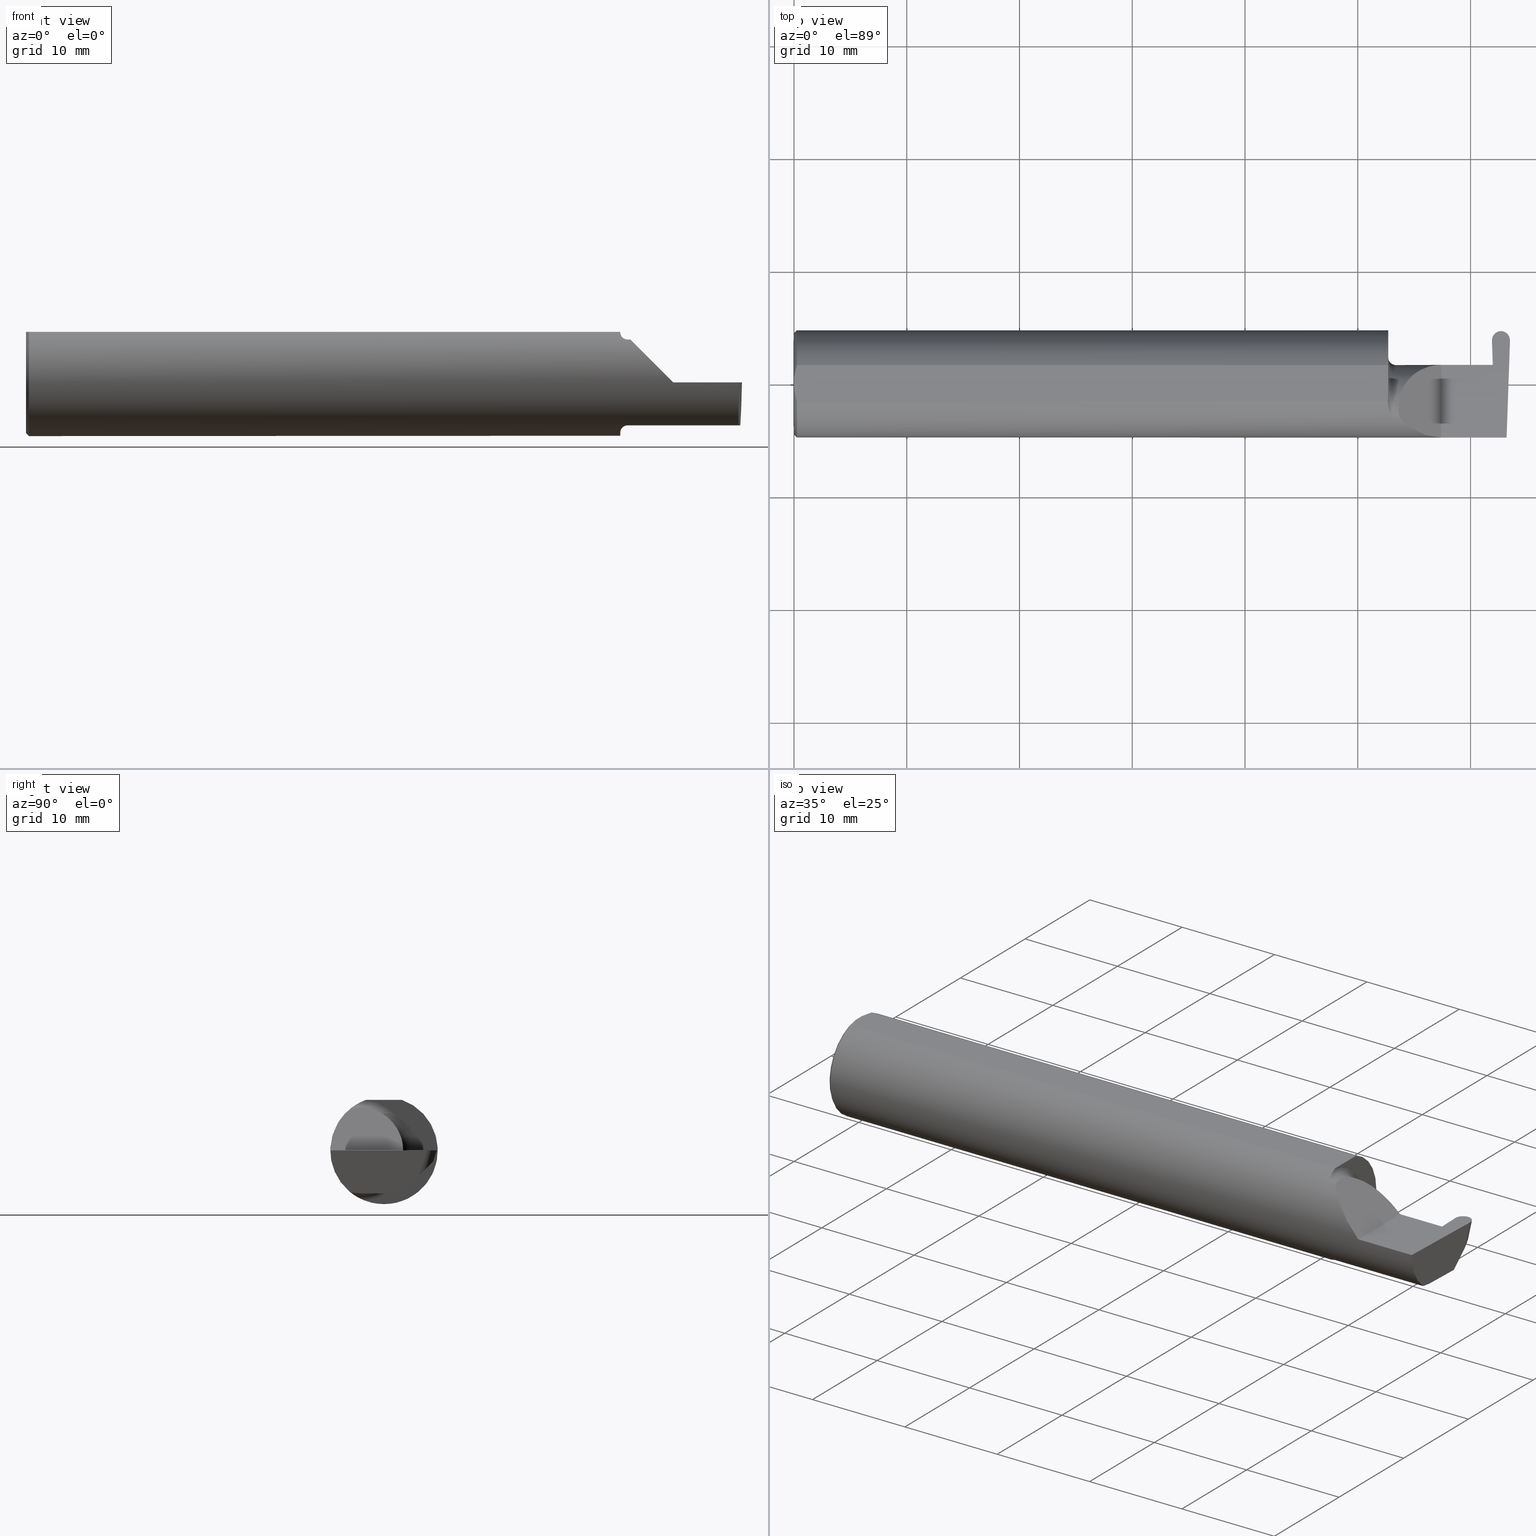
[diagram: canonical four-view strip — front | top / right | iso, engineering-drawing reading convention]
A machine part, canonical four-view strip (front | top / right | iso — engineering-drawing reading convention). The complete STEP part file that produces these views, byte-faithful:
ISO-10303-21;
HEADER;
FILE_DESCRIPTION (( 'STEP AP203' ),
    '1' );
FILE_NAME ('222155-GFR062-6.STEP',
    '2024-06-26T19:10:31',
    ( '' ),
    ( '' ),
    'SwSTEP 2.0',
    'SolidWorks 2024',
    '' );
FILE_SCHEMA (( 'CONFIG_CONTROL_DESIGN' ));
ENDSEC;

DATA;
#1 = LINE ( 'NONE', #5, #705 ) ;
#2 = CARTESIAN_POINT ( 'NONE',  ( 2.113883229301068312, -0.1172600179964003175, 0.1461167706989304760 ) ) ;
#3 = ORIENTED_EDGE ( 'NONE', *, *, #450, .F. ) ;
#4 = PRODUCT_DEFINITION ( 'UNKNOWN', '', #722, #333 ) ;
#5 = CARTESIAN_POINT ( 'NONE',  ( 0.000000000000000000, 0.000000000000000000, -0.1773500000000005072 ) ) ;
#6 =( NAMED_UNIT ( * ) SI_UNIT ( $, .STERADIAN. ) SOLID_ANGLE_UNIT ( ) );
#7 = ORIENTED_EDGE ( 'NONE', *, *, #736, .T. ) ;
#8 = CARTESIAN_POINT ( 'NONE',  ( 2.430708765333227994, 0.06661954135095467244, -0.001744974835127134595 ) ) ;
#9 = ORIENTED_EDGE ( 'NONE', *, *, #450, .T. ) ;
#10 = VECTOR ( 'NONE', #206, 39.37007874015748143 ) ;
#11 = ADVANCED_FACE ( 'NONE', ( #51 ), #547, .F. ) ;
#12 = CARTESIAN_POINT ( 'NONE',  ( 2.468430450000000054, 0.1722870660481372052, -0.03801598549501233881 ) ) ;
#13 = VERTEX_POINT ( 'NONE', #480 ) ;
#14 = DIRECTION ( 'NONE',  ( 0.000000000000000000, 0.000000000000000000, 1.000000000000000000 ) ) ;
#15 = DIRECTION ( 'NONE',  ( -0.7071067811865441310, 0.000000000000000000, -0.7071067811865510144 ) ) ;
#16 = PERSON_AND_ORGANIZATION_ROLE ( 'creator' ) ;
#17 = VERTEX_POINT ( 'NONE', #182 ) ;
#18 = CARTESIAN_POINT ( 'NONE',  ( 2.100000000000000089, -0.08334999999999999354, 0.000000000000000000 ) ) ;
#19 = CARTESIAN_POINT ( 'NONE',  ( 0.000000000000000000, 0.06325108694718235836, 0.1763499999999999235 ) ) ;
#20 = EDGE_CURVE ( 'NONE', #189, #408, #139, .T. ) ;
#21 = MANIFOLD_SOLID_BREP ( 'Radii', #289 ) ;
#22 =( NAMED_UNIT ( * ) PLANE_ANGLE_UNIT ( ) SI_UNIT ( $, .RADIAN. ) );
#23 = ORIENTED_EDGE ( 'NONE', *, *, #715, .F. ) ;
#24 = EDGE_CURVE ( 'NONE', #61, #676, #179, .T. ) ;
#25 = AXIS2_PLACEMENT_3D ( 'NONE', #320, #512, #188 ) ;
#26 = FACE_OUTER_BOUND ( 'NONE', #385, .T. ) ;
#27 = LOCAL_TIME ( 12, 10, 31.00000000000000000, #724 ) ;
#28 = DIRECTION ( 'NONE',  ( 0.000000000000000000, 0.000000000000000000, 1.000000000000000000 ) ) ;
#29 = ORIENTED_EDGE ( 'NONE', *, *, #253, .T. ) ;
#30 = CC_DESIGN_DATE_AND_TIME_ASSIGNMENT ( #275, #567, ( #81 ) ) ;
#31 = PLANE ( 'NONE',  #378 ) ;
#32 = CARTESIAN_POINT ( 'NONE',  ( 2.109999999999998987, -0.08334999999999999354, 0.1500000000000000500 ) ) ;
#33 = EDGE_LOOP ( 'NONE', ( #788, #767, #703, #604, #661, #142 ) ) ;
#34 =( BOUNDED_CURVE ( )  B_SPLINE_CURVE ( 3, ( #489, #39, #175, #680 ),
 .UNSPECIFIED., .F., .T. ) 
 B_SPLINE_CURVE_WITH_KNOTS ( ( 4, 4 ),
 ( 3.159045946109736214, 4.694935687864695950 ),
 .UNSPECIFIED. ) 
 CURVE ( )  GEOMETRIC_REPRESENTATION_ITEM ( )  RATIONAL_B_SPLINE_CURVE ( ( 1.000000000000000000, 0.8128932002257790446, 0.8128932002257790446, 1.000000000000000000 ) ) 
 REPRESENTATION_ITEM ( '' )  );
#35 = CARTESIAN_POINT ( 'NONE',  ( 2.442502567817287584, 0.06409798100083120842, -0.1462050705423010022 ) ) ;
#36 = DIRECTION ( 'NONE',  ( -0.0003154085283454578109, 0.9999999502587288980, 0.000000000000000000 ) ) ;
#37 = APPROVAL_DATE_TIME ( #794, #637 ) ;
#38 = ORIENTED_EDGE ( 'NONE', *, *, #194, .F. ) ;
#39 = CARTESIAN_POINT ( 'NONE',  ( 2.442590694315768474, 0.002105059811798080851, -0.1500000000000000777 ) ) ;
#40 = CIRCLE ( 'NONE', #247, 0.1749999999999999889 ) ;
#41 = AXIS2_PLACEMENT_3D ( 'NONE', #283, #216, #14 ) ;
#42 = FACE_OUTER_BOUND ( 'NONE', #621, .T. ) ;
#43 = APPROVAL_STATUS ( 'not_yet_approved' ) ;
#44 = CARTESIAN_POINT ( 'NONE',  ( 2.496599625675735457, 0.1068818013178887832, -0.1034212502252615240 ) ) ;
#45 = VERTEX_POINT ( 'NONE', #665 ) ;
#46 = CARTESIAN_POINT ( 'NONE',  ( 2.075000000000000178, -0.06851976604679065053, 0.1743704796142198643 ) ) ;
#47 = DIRECTION ( 'NONE',  ( 0.000000000000000000, -0.9510565162951534202, 0.3090169943749482284 ) ) ;
#48 = ORIENTED_EDGE ( 'NONE', *, *, #171, .T. ) ;
#49 = DIRECTION ( 'NONE',  ( 1.000000000000000000, 7.488084056613327882E-15, -0.000000000000000000 ) ) ;
#50 = CARTESIAN_POINT ( 'NONE',  ( 2.100000000000000089, -0.08334999999999999354, 0.000000000000000000 ) ) ;
#51 = FACE_OUTER_BOUND ( 'NONE', #614, .T. ) ;
#52 = EDGE_CURVE ( 'NONE', #337, #13, #750, .T. ) ;
#53 = ORIENTED_EDGE ( 'NONE', *, *, #558, .F. ) ;
#54 = EDGE_CURVE ( 'NONE', #640, #363, #390, .T. ) ;
#55 = CARTESIAN_POINT ( 'NONE',  ( 2.499980768683121024, 0.1519786885938757826, 0.000000000000000000 ) ) ;
#56 = VECTOR ( 'NONE', #566, 39.37007874015747433 ) ;
#57 = CARTESIAN_POINT ( 'NONE',  ( 0.005155213631852355663, 0.04890080824240217866, 0.1763499999999999235 ) ) ;
#58 = AXIS2_PLACEMENT_3D ( 'NONE', #200, #262, #133 ) ;
#59 = ORIENTED_EDGE ( 'NONE', *, *, #54, .T. ) ;
#60 = DIRECTION ( 'NONE',  ( -1.000000000000000000, -0.000000000000000000, -0.000000000000000000 ) ) ;
#61 = VERTEX_POINT ( 'NONE', #746 ) ;
#62 = ADVANCED_FACE ( 'NONE', ( #734 ), #105, .F. ) ;
#63 = DIRECTION ( 'NONE',  ( 0.000000000000000000, 0.000000000000000000, -1.000000000000000000 ) ) ;
#64 = ORIENTED_EDGE ( 'NONE', *, *, #102, .T. ) ;
#65 = FACE_OUTER_BOUND ( 'NONE', #33, .T. ) ;
#66 = AXIS2_PLACEMENT_3D ( 'NONE', #164, #616, #415 ) ;
#67 = FACE_OUTER_BOUND ( 'NONE', #611, .T. ) ;
#68 = AXIS2_PLACEMENT_3D ( 'NONE', #162, #338, #772 ) ;
#69 = ORIENTED_EDGE ( 'NONE', *, *, #282, .F. ) ;
#70 = CARTESIAN_POINT ( 'NONE',  ( 0.009999999999999346217, -0.06325108694718235836, 0.1763499999999999235 ) ) ;
#71 = PERSON_AND_ORGANIZATION_ROLE ( 'design_supplier' ) ;
#72 = ORIENTED_EDGE ( 'NONE', *, *, #168, .T. ) ;
#73 = DIRECTION ( 'NONE',  ( -0.01299916717458447432, 0.7070470357949164564, 0.7070470357949245610 ) ) ;
#74 =( CONVERSION_BASED_UNIT ( 'INCH', #639 ) LENGTH_UNIT ( ) NAMED_UNIT ( #193 ) );
#75 = EDGE_CURVE ( 'NONE', #408, #640, #115, .T. ) ;
#76 = ORIENTED_EDGE ( 'NONE', *, *, #755, .T. ) ;
#77 = LINE ( 'NONE', #801, #409 ) ;
#78 = APPLICATION_PROTOCOL_DEFINITION ( 'international standard', 'config_control_design', 1994, #576 ) ;
#79 = EDGE_LOOP ( 'NONE', ( #416, #120, #303, #161 ) ) ;
#80 = TOROIDAL_SURFACE ( 'NONE', #641, 0.1749999999999999889, 0.02499999999999994241 ) ;
#81 = SECURITY_CLASSIFICATION ( '', '', #271 ) ;
#82 = DIRECTION ( 'NONE',  ( 1.000000000000000000, 0.000000000000000000, 0.000000000000000000 ) ) ;
#83 = CALENDAR_DATE ( 2024, 26, 6 ) ;
#84 = ORIENTED_EDGE ( 'NONE', *, *, #433, .T. ) ;
#85 = DIRECTION ( 'NONE',  ( -1.000000000000000000, -0.000000000000000000, -0.000000000000000000 ) ) ;
#86 = EDGE_CURVE ( 'NONE', #688, #513, #728, .T. ) ;
#87 = CARTESIAN_POINT ( 'NONE',  ( 0.000000000000000000, -0.01880691362239451242, 0.1763499999999999235 ) ) ;
#88 = COORDINATED_UNIVERSAL_TIME_OFFSET ( 8, 0, .BEHIND. ) ;
#89 = VERTEX_POINT ( 'NONE', #484 ) ;
#90 = CARTESIAN_POINT ( 'NONE',  ( 2.075000000000000178, -0.08334999999999997966, -0.1500000000000000500 ) ) ;
#91 = DIRECTION ( 'NONE',  ( 0.000000000000000000, -0.7071067811865516806, 0.7071067811865434649 ) ) ;
#92 = EDGE_CURVE ( 'NONE', #700, #756, #635, .T. ) ;
#93 = PERSON_AND_ORGANIZATION ( #505, #642 ) ;
#94 = ORIENTED_EDGE ( 'NONE', *, *, #452, .F. ) ;
#95 = CARTESIAN_POINT ( 'NONE',  ( 2.076062863587533780, -0.08334999999998818354, 0.1677879614275171183 ) ) ;
#96 = AXIS2_PLACEMENT_3D ( 'NONE', #55, #111, #165 ) ;
#97 = FACE_OUTER_BOUND ( 'NONE', #332, .T. ) ;
#98 = ORIENTED_EDGE ( 'NONE', *, *, #217, .F. ) ;
#99 = CARTESIAN_POINT ( 'NONE',  ( 2.100000000000000089, -0.08334999999999996578, -0.1749999999999999889 ) ) ;
#100 = CARTESIAN_POINT ( 'NONE',  ( 2.439859874782298377, 0.06664999999999998703, 0.000000000000000000 ) ) ;
#101 = ORIENTED_EDGE ( 'NONE', *, *, #86, .F. ) ;
#102 = EDGE_CURVE ( 'NONE', #89, #186, #245, .T. ) ;
#103 = CARTESIAN_POINT ( 'NONE',  ( 2.100000000000000089, -0.08334999999999997966, 0.1749999999999999889 ) ) ;
#104 = DIRECTION ( 'NONE',  ( -1.224646799147353947E-16, 0.000000000000000000, -1.000000000000000000 ) ) ;
#105 = PLANE ( 'NONE',  #238 ) ;
#106 = ORIENTED_EDGE ( 'NONE', *, *, #119, .T. ) ;
#107 = DIRECTION ( 'NONE',  ( -1.000000000000000000, -0.000000000000000000, -0.000000000000000000 ) ) ;
#108 = CIRCLE ( 'NONE', #145, 0.1773500000000005072 ) ;
#109 = CARTESIAN_POINT ( 'NONE',  ( 2.437968007029192030, 0.1506577441815558360, -0.05964530736159395080 ) ) ;
#110 = ORIENTED_EDGE ( 'NONE', *, *, #292, .F. ) ;
#111 = DIRECTION ( 'NONE',  ( -0.9992386149554828290, 0.03489418134010577321, 0.01745240643728358798 ) ) ;
#112 = ADVANCED_FACE ( 'NONE', ( #795 ), #229, .F. ) ;
#113 = CARTESIAN_POINT ( 'NONE',  ( 2.430647848035137226, 0.06655862405286416816, -0.005234924505381401832 ) ) ;
#114 = EDGE_CURVE ( 'NONE', #434, #399, #811, .T. ) ;
#115 = LINE ( 'NONE', #542, #391 ) ;
#116 = ORIENTED_EDGE ( 'NONE', *, *, #673, .F. ) ;
#117 = CARTESIAN_POINT ( 'NONE',  ( 2.079475235432781677, -0.09757364237049398481, -0.1599863467203318512 ) ) ;
#118 = CARTESIAN_POINT ( 'NONE',  ( 2.202189699843948301, -0.1873500000000000443, 0.05781030015605120170 ) ) ;
#119 = EDGE_CURVE ( 'NONE', #697, #45, #299, .T. ) ;
#120 = ORIENTED_EDGE ( 'NONE', *, *, #488, .T. ) ;
#121 = CARTESIAN_POINT ( 'NONE',  ( 2.498892892970808521, 0.1506577441815563079, -0.05964530736159349283 ) ) ;
#122 = CIRCLE ( 'NONE', #548, 0.1873499999999999888 ) ;
#123 = DIRECTION ( 'NONE',  ( 0.000000000000000000, -0.3090169943749481729, -0.9510565162951533091 ) ) ;
#124 = CIRCLE ( 'NONE', #764, 0.02499999999999993894 ) ;
#125 = ORIENTED_EDGE ( 'NONE', *, *, #704, .F. ) ;
#126 = CARTESIAN_POINT ( 'NONE',  ( 2.439859874782298377, 0.06664999999999998703, 0.000000000000000000 ) ) ;
#127 = ORIENTED_EDGE ( 'NONE', *, *, #75, .T. ) ;
#128 = CARTESIAN_POINT ( 'NONE',  ( 2.430739223982273156, 0.06664999999999991764, 0.000000000000000000 ) ) ;
#129 =( BOUNDED_CURVE ( )  B_SPLINE_CURVE ( 3, ( #591, #286, #213, #401 ),
 .UNSPECIFIED., .F., .F. ) 
 B_SPLINE_CURVE_WITH_KNOTS ( ( 4, 4 ),
 ( 0.000000000000000000, 1.570796326794896336 ),
 .UNSPECIFIED. ) 
 CURVE ( )  GEOMETRIC_REPRESENTATION_ITEM ( )  RATIONAL_B_SPLINE_CURVE ( ( 1.000000000000000000, 0.8047378541243650485, 0.8047378541243650485, 1.000000000000000000 ) ) 
 REPRESENTATION_ITEM ( '' )  );
#130 = ORIENTED_EDGE ( 'NONE', *, *, #570, .T. ) ;
#131 = CARTESIAN_POINT ( 'NONE',  ( 2.075000000000000178, -0.08334999999999999354, 0.000000000000000000 ) ) ;
#132 = VECTOR ( 'NONE', #73, 39.37007874015748143 ) ;
#133 = DIRECTION ( 'NONE',  ( 1.000000000000000000, 0.000000000000000000, 0.000000000000000000 ) ) ;
#134 = ORIENTED_EDGE ( 'NONE', *, *, #340, .F. ) ;
#135 = ADVANCED_FACE ( 'NONE', ( #242 ), #492, .F. ) ;
#136 = CARTESIAN_POINT ( 'NONE',  ( 2.268430449999999876, -0.1172600179964006090, -0.1461167706989303927 ) ) ;
#137 = ADVANCED_FACE ( 'NONE', ( #446 ), #634, .T. ) ;
#138 = ORIENTED_EDGE ( 'NONE', *, *, #568, .F. ) ;
#139 = B_SPLINE_CURVE_WITH_KNOTS ( 'NONE', 3,
 ( #620, #173, #610, #420 ),
 .UNSPECIFIED., .F., .F.,
 ( 4, 4 ),
 ( 0.009771445421851449736, 0.01092787937989102981 ),
 .UNSPECIFIED. ) ;
#140 = CARTESIAN_POINT ( 'NONE',  ( 2.468721519699850209, 0.1846500000000000363, 0.000000000000000000 ) ) ;
#141 = CARTESIAN_POINT ( 'NONE',  ( 2.488026713523223243, -0.1172600179964006090, -0.1461167706989303927 ) ) ;
#142 = ORIENTED_EDGE ( 'NONE', *, *, #673, .T. ) ;
#143 = CARTESIAN_POINT ( 'NONE',  ( -0.001039370078740541395, 0.06030305154315079852, -0.1500000000000000500 ) ) ;
#144 = ORIENTED_EDGE ( 'NONE', *, *, #806, .F. ) ;
#145 = AXIS2_PLACEMENT_3D ( 'NONE', #380, #814, #316 ) ;
#146 = ADVANCED_FACE ( 'NONE', ( #760 ), #623, .T. ) ;
#147 = CARTESIAN_POINT ( 'NONE',  ( 2.095724556588812515, -0.1172600179964060629, 0.1461167706989260351 ) ) ;
#148 = DIRECTION ( 'NONE',  ( 0.000000000000000000, 0.000000000000000000, 1.000000000000000000 ) ) ;
#149 = PERSON_AND_ORGANIZATION ( #505, #642 ) ;
#150 = ORIENTED_EDGE ( 'NONE', *, *, #629, .F. ) ;
#151 = CARTESIAN_POINT ( 'NONE',  ( 2.074999999999999734, -0.07360907839729495528, 0.1723706084642000480 ) ) ;
#152 = DIRECTION ( 'NONE',  ( 1.000000000000000000, 0.000000000000000000, 0.000000000000000000 ) ) ;
#153 = ORIENTED_EDGE ( 'NONE', *, *, #488, .F. ) ;
#154 = DIRECTION ( 'NONE',  ( -0.03489949670249345437, 0.9993908270190959842, 0.000000000000000000 ) ) ;
#155 = DIRECTION ( 'NONE',  ( 1.000000000000000000, 0.000000000000000000, -0.000000000000000000 ) ) ;
#156 = ORIENTED_EDGE ( 'NONE', *, *, #736, .F. ) ;
#157 = VECTOR ( 'NONE', #414, 39.37007874015748143 ) ;
#158 = CARTESIAN_POINT ( 'NONE',  ( 2.084249444250374061, -0.1073163636891284328, 0.1536158790136665231 ) ) ;
#159 = CC_DESIGN_APPROVAL ( #348, ( #4 ) ) ;
#160 = CARTESIAN_POINT ( 'NONE',  ( 0.000000000000000000, 0.000000000000000000, -0.1773500000000005072 ) ) ;
#161 = ORIENTED_EDGE ( 'NONE', *, *, #714, .T. ) ;
#162 = CARTESIAN_POINT ( 'NONE',  ( 2.876828993045917215, 0.1873499999999998500, 0.1763499999999999235 ) ) ;
#163 = CARTESIAN_POINT ( 'NONE',  ( 2.489143054109411057, -0.08335000000000014619, -0.1500000000000000500 ) ) ;
#164 = CARTESIAN_POINT ( 'NONE',  ( 0.000000000000000000, 0.000000000000000000, 0.000000000000000000 ) ) ;
#165 = DIRECTION ( 'NONE',  ( -0.03489949670249307273, -0.9993908270190959842, 0.000000000000000000 ) ) ;
#166 = DIRECTION ( 'NONE',  ( 1.000000000000000000, 0.000000000000000000, 0.000000000000000000 ) ) ;
#167 = VERTEX_POINT ( 'NONE', #502 ) ;
#168 = EDGE_CURVE ( 'NONE', #325, #408, #108, .T. ) ;
#169 = CARTESIAN_POINT ( 'NONE',  ( 2.075000000000000178, -0.07359296612170564134, -0.1723769398647691520 ) ) ;
#170 = VECTOR ( 'NONE', #190, 39.37007874015748143 ) ;
#171 = EDGE_CURVE ( 'NONE', #624, #13, #260, .T. ) ;
#172 = CARTESIAN_POINT ( 'NONE',  ( 3.749399456654646757E-32, -0.1873499999999999610, 3.061616997868383634E-16 ) ) ;
#173 = CARTESIAN_POINT ( 'NONE',  ( 0.005151108632379595466, -0.04888864921576189376, 0.1763499999999999235 ) ) ;
#174 = ORIENTED_EDGE ( 'NONE', *, *, #24, .T. ) ;
#175 = CARTESIAN_POINT ( 'NONE',  ( 2.441498648347320888, 0.06357628547474594716, -0.09063792740366180545 ) ) ;
#176 = CC_DESIGN_PERSON_AND_ORGANIZATION_ASSIGNMENT ( #779, #71, ( #722 ) ) ;
#177 = CARTESIAN_POINT ( 'NONE',  ( 2.442617676478078259, -0.08344164721461182210, -0.1500000000000000500 ) ) ;
#178 = B_SPLINE_CURVE_WITH_KNOTS ( 'NONE', 3,
 ( #503, #619, #169, #431 ),
 .UNSPECIFIED., .F., .F.,
 ( 4, 4 ),
 ( 0.001278539404338874426, 0.001694873732696222223 ),
 .UNSPECIFIED. ) ;
#179 = LINE ( 'NONE', #669, #261 ) ;
#180 = ORIENTED_EDGE ( 'NONE', *, *, #813, .T. ) ;
#181 = FACE_OUTER_BOUND ( 'NONE', #504, .T. ) ;
#182 = CARTESIAN_POINT ( 'NONE',  ( 2.442617647571764028, -0.08334999999999999354, -0.1500000000000000500 ) ) ;
#183 = ORIENTED_EDGE ( 'NONE', *, *, #427, .T. ) ;
#184 = LINE ( 'NONE', #386, #170 ) ;
#185 = VECTOR ( 'NONE', #458, 39.37007874015748143 ) ;
#186 = VERTEX_POINT ( 'NONE', #684 ) ;
#187 = ADVANCED_BREP_SHAPE_REPRESENTATION ( '222155-GFR062-6', ( #21, #58 ), #344 ) ;
#188 = DIRECTION ( 'NONE',  ( 0.000000000000000000, 0.9510565162951533091, -0.3090169943749480619 ) ) ;
#189 = VERTEX_POINT ( 'NONE', #70 ) ;
#190 = DIRECTION ( 'NONE',  ( -0.03701744261649762141, 0.7066221440565398915, 0.7066221440565479961 ) ) ;
#191 = CARTESIAN_POINT ( 'NONE',  ( 2.076062863587533780, -0.08334999999998818354, 0.1677879614275171183 ) ) ;
#192 = ORIENTED_EDGE ( 'NONE', *, *, #714, .F. ) ;
#193 = DIMENSIONAL_EXPONENTS ( 1.000000000000000000, 0.000000000000000000, 0.000000000000000000, 0.000000000000000000, 0.000000000000000000, 0.000000000000000000, 0.000000000000000000 ) ;
#194 = EDGE_CURVE ( 'NONE', #640, #325, #368, .T. ) ;
#195 = ADVANCED_FACE ( 'NONE', ( #65 ), #80, .F. ) ;
#196 = DIRECTION ( 'NONE',  ( 0.7071067811865426878, 0.000000000000000000, -0.7071067811865523467 ) ) ;
#197 = AXIS2_PLACEMENT_3D ( 'NONE', #571, #559, #63 ) ;
#198 = ORIENTED_EDGE ( 'NONE', *, *, #20, .T. ) ;
#199 = CC_DESIGN_PERSON_AND_ORGANIZATION_ASSIGNMENT ( #520, #648, ( #81 ) ) ;
#200 = CARTESIAN_POINT ( 'NONE',  ( 0.000000000000000000, 0.000000000000000000, 0.000000000000000000 ) ) ;
#201 = VERTEX_POINT ( 'NONE', #383 ) ;
#202 = CARTESIAN_POINT ( 'NONE',  ( 2.260000000000000231, -0.2500000000000000555, 2.939152317953647352E-17 ) ) ;
#203 = PERSON_AND_ORGANIZATION_ROLE ( 'creator' ) ;
#204 = ORIENTED_EDGE ( 'NONE', *, *, #281, .T. ) ;
#205 = LINE ( 'NONE', #232, #562 ) ;
#206 = DIRECTION ( 'NONE',  ( -1.000000000000000000, -0.000000000000000000, -0.000000000000000000 ) ) ;
#207 = APPROVAL_DATE_TIME ( #515, #348 ) ;
#208 = ORIENTED_EDGE ( 'NONE', *, *, #782, .F. ) ;
#209 = VECTOR ( 'NONE', #721, 39.37007874015748143 ) ;
#210 = AXIS2_PLACEMENT_3D ( 'NONE', #650, #466, #222 ) ;
#211 = PLANE ( 'NONE',  #485 ) ;
#212 = ORIENTED_EDGE ( 'NONE', *, *, #622, .F. ) ;
#213 = CARTESIAN_POINT ( 'NONE',  ( 2.172132034355963359, 0.06665000000000001479, 0.08786796564403576149 ) ) ;
#214 = CARTESIAN_POINT ( 'NONE',  ( 2.109999999999998543, -0.09477667630339406402, 0.1500000000000000222 ) ) ;
#215 = EDGE_LOOP ( 'NONE', ( #666, #308, #771, #816 ) ) ;
#216 = DIRECTION ( 'NONE',  ( -1.000000000000000000, -0.000000000000000000, -0.000000000000000000 ) ) ;
#217 = EDGE_CURVE ( 'NONE', #569, #167, #609, .T. ) ;
#218 = EDGE_CURVE ( 'NONE', #89, #61, #563, .T. ) ;
#219 = PLANE ( 'NONE',  #720 ) ;
#220 = ORIENTED_EDGE ( 'NONE', *, *, #745, .T. ) ;
#221 = VECTOR ( 'NONE', #436, 39.37007874015747433 ) ;
#222 = DIRECTION ( 'NONE',  ( 0.000000000000000000, 0.000000000000000000, -1.000000000000000000 ) ) ;
#223 = LOCAL_TIME ( 12, 10, 31.00000000000000000, #398 ) ;
#224 = DIRECTION ( 'NONE',  ( -1.000000000000000000, 0.000000000000000000, 1.224646799147353947E-16 ) ) ;
#225 = CARTESIAN_POINT ( 'NONE',  ( 2.468430450000000054, 0.1813675557112593428, -0.01010232474915218753 ) ) ;
#226 = CARTESIAN_POINT ( 'NONE',  ( 2.100000000000000089, -0.08334999999999996578, -0.1500000000000000777 ) ) ;
#227 = CARTESIAN_POINT ( 'NONE',  ( 2.439475726232483321, 0.1218770478189729611, -0.08842600372417716570 ) ) ;
#228 = SHAPE_DEFINITION_REPRESENTATION ( #256, #187 ) ;
#229 = PLANE ( 'NONE',  #277 ) ;
#230 = EDGE_CURVE ( 'NONE', #272, #697, #312, .T. ) ;
#231 = VERTEX_POINT ( 'NONE', #439 ) ;
#232 = CARTESIAN_POINT ( 'NONE',  ( 2.436880131316879083, 0.1519786885938757270, 0.000000000000000000 ) ) ;
#233 = CARTESIAN_POINT ( 'NONE',  ( 2.100000000000000089, -0.1172600179964006090, 0.1461167706989303927 ) ) ;
#234 =( BOUNDED_CURVE ( )  B_SPLINE_CURVE ( 3, ( #606, #352, #121, #442 ),
 .UNSPECIFIED., .F., .F. ) 
 B_SPLINE_CURVE_WITH_KNOTS ( ( 4, 4 ),
 ( 3.153164711223715777, 4.726229945297541590 ),
 .UNSPECIFIED. ) 
 CURVE ( )  GEOMETRIC_REPRESENTATION_ITEM ( )  RATIONAL_B_SPLINE_CURVE ( ( 1.000000000000000000, 0.8042027643195487352, 0.8042027643195487352, 1.000000000000000000 ) ) 
 REPRESENTATION_ITEM ( '' )  );
#235 = CARTESIAN_POINT ( 'NONE',  ( 2.468430450000000054, 0.1722870660481372052, -0.03801598549501233881 ) ) ;
#236 = APPROVAL ( #394, 'UNSPECIFIED' ) ;
#237 = CARTESIAN_POINT ( 'NONE',  ( 2.086340974786207170, -0.1102890168945985933, -0.1514792188789464422 ) ) ;
#238 = AXIS2_PLACEMENT_3D ( 'NONE', #307, #354, #675 ) ;
#239 = VECTOR ( 'NONE', #674, 39.37007874015748143 ) ;
#240 = DIRECTION ( 'NONE',  ( 0.000000000000000000, 0.9510565162951534202, -0.3090169943749482839 ) ) ;
#241 = CC_DESIGN_APPROVAL ( #637, ( #81 ) ) ;
#242 = FACE_OUTER_BOUND ( 'NONE', #79, .T. ) ;
#243 = VERTEX_POINT ( 'NONE', #765 ) ;
#244 = DIRECTION ( 'NONE',  ( 0.000000000000000000, 0.000000000000000000, 1.000000000000000000 ) ) ;
#245 = LINE ( 'NONE', #44, #535 ) ;
#246 = ORIENTED_EDGE ( 'NONE', *, *, #544, .T. ) ;
#247 = AXIS2_PLACEMENT_3D ( 'NONE', #749, #754, #687 ) ;
#248 = VECTOR ( 'NONE', #545, 39.37007874015747433 ) ;
#249 = DIRECTION ( 'NONE',  ( 7.486943585142156164E-15, -0.9998476951563912696, 0.01745240643728358451 ) ) ;
#250 = ORIENTED_EDGE ( 'NONE', *, *, #114, .T. ) ;
#251 = DIRECTION ( 'NONE',  ( 0.000000000000000000, -0.01745240643728358451, -0.9998476951563912696 ) ) ;
#252 = DIRECTION ( 'NONE',  ( 1.000000000000000000, 0.000000000000000000, 0.000000000000000000 ) ) ;
#253 = EDGE_CURVE ( 'NONE', #61, #347, #519, .T. ) ;
#254 = ORIENTED_EDGE ( 'NONE', *, *, #114, .F. ) ;
#255 = EDGE_CURVE ( 'NONE', #805, #337, #40, .T. ) ;
#256 = PRODUCT_DEFINITION_SHAPE ( 'NONE', 'NONE',  #4 ) ;
#257 = DIRECTION ( 'NONE',  ( -1.000000000000000000, -0.000000000000000000, -0.000000000000000000 ) ) ;
#258 = CALENDAR_DATE ( 2024, 26, 6 ) ;
#259 = ORIENTED_EDGE ( 'NONE', *, *, #509, .F. ) ;
#260 = LINE ( 'NONE', #810, #601 ) ;
#261 = VECTOR ( 'NONE', #744, 39.37007874015747433 ) ;
#262 = DIRECTION ( 'NONE',  ( 0.000000000000000000, 0.000000000000000000, 1.000000000000000000 ) ) ;
#263 = AXIS2_PLACEMENT_3D ( 'NONE', #743, #597, #600 ) ;
#264 = ORIENTED_EDGE ( 'NONE', *, *, #230, .T. ) ;
#265 = LINE ( 'NONE', #455, #10 ) ;
#266 = COORDINATED_UNIVERSAL_TIME_OFFSET ( 8, 0, .BEHIND. ) ;
#267 = EDGE_LOOP ( 'NONE', ( #101, #658, #250, #626, #110 ) ) ;
#268 = CARTESIAN_POINT ( 'NONE',  ( 2.086319809340846820, -0.1102629523538395662, 0.1514982751257170079 ) ) ;
#269 = DIRECTION ( 'NONE',  ( 0.000000000000000000, 0.000000000000000000, -1.000000000000000000 ) ) ;
#270 = EDGE_CURVE ( 'NONE', #325, #685, #1, .T. ) ;
#271 = SECURITY_CLASSIFICATION_LEVEL ( 'unclassified' ) ;
#272 = VERTEX_POINT ( 'NONE', #506 ) ;
#273 = CARTESIAN_POINT ( 'NONE',  ( 0.000000000000000000, -0.06325108694718235836, 0.1763499999999999235 ) ) ;
#274 = LINE ( 'NONE', #143, #342 ) ;
#275 = DATE_AND_TIME ( #336, #725 ) ;
#276 = EDGE_LOOP ( 'NONE', ( #204, #246, #457, #64, #382, #264 ) ) ;
#277 = AXIS2_PLACEMENT_3D ( 'NONE', #359, #47, #123 ) ;
#278 = CARTESIAN_POINT ( 'NONE',  ( 2.436880131316879083, 0.1519786885938757270, 0.000000000000000000 ) ) ;
#279 = CARTESIAN_POINT ( 'NONE',  ( 2.075000000000000178, 0.06665000000000002867, 5.204748896376251932E-17 ) ) ;
#280 = ORIENTED_EDGE ( 'NONE', *, *, #282, .T. ) ;
#281 = EDGE_CURVE ( 'NONE', #697, #231, #184, .T. ) ;
#282 = EDGE_CURVE ( 'NONE', #201, #481, #691, .T. ) ;
#283 = CARTESIAN_POINT ( 'NONE',  ( 0.000000000000000000, 0.000000000000000000, 0.000000000000000000 ) ) ;
#284 = LINE ( 'NONE', #518, #473 ) ;
#285 = ORIENTED_EDGE ( 'NONE', *, *, #54, .F. ) ;
#286 = CARTESIAN_POINT ( 'NONE',  ( 2.109999999999998543, 0.004517965644035750600, 0.1500000000000000500 ) ) ;
#287 = LINE ( 'NONE', #172, #239 ) ;
#288 = DIRECTION ( 'NONE',  ( 1.000000000000000000, 0.000000000000000000, 0.000000000000000000 ) ) ;
#289 = CLOSED_SHELL ( 'NONE', ( #137, #595, #781, #195, #403, #135, #690, #402, #490, #667, #11, #631, #731, #315, #533, #323, #112, #343, #689, #723, #62, #146, #543 ) ) ;
#290 = CARTESIAN_POINT ( 'NONE',  ( 2.097868998470238555, -0.1172600179964006506, -0.1461167706989303927 ) ) ;
#291 = APPROVAL_PERSON_ORGANIZATION ( #149, #348, #699 ) ;
#292 = EDGE_CURVE ( 'NONE', #513, #231, #556, .T. ) ;
#293 = CYLINDRICAL_SURFACE ( 'NONE', #460, 0.03149999999999998634 ) ;
#294 = APPROVAL_ROLE ( '' ) ;
#295 = ORIENTED_EDGE ( 'NONE', *, *, #230, .F. ) ;
#296 = EDGE_LOOP ( 'NONE', ( #590, #322, #682, #747 ) ) ;
#297 = CARTESIAN_POINT ( 'NONE',  ( 2.100000000000000089, -0.08334999999999997966, 0.000000000000000000 ) ) ;
#298 = CARTESIAN_POINT ( 'NONE',  ( 2.487121452143546296, -0.1873500000000000165, -0.05781030015605123640 ) ) ;
#299 = LINE ( 'NONE', #740, #523 ) ;
#300 = DIRECTION ( 'NONE',  ( 0.000000000000000000, 0.000000000000000000, -1.000000000000000000 ) ) ;
#301 = DIRECTION ( 'NONE',  ( 0.000000000000000000, 0.000000000000000000, -1.000000000000000000 ) ) ;
#302 = DIRECTION ( 'NONE',  ( -0.01806954526206907760, 0.01744955702544846027, 0.9996844524616944616 ) ) ;
#303 = ORIENTED_EDGE ( 'NONE', *, *, #217, .T. ) ;
#304 = CARTESIAN_POINT ( 'NONE',  ( 0.009999999999999346217, 0.000000000000000000, 0.000000000000000000 ) ) ;
#305 = CONICAL_SURFACE ( 'NONE', #802, 0.1773500000000005072, 0.7853981633974551624 ) ;
#306 = AXIS2_PLACEMENT_3D ( 'NONE', #426, #107, #796 ) ;
#307 = CARTESIAN_POINT ( 'NONE',  ( 2.442864017735575821, -2.379232792529848872, -0.1235596198100888943 ) ) ;
#308 = ORIENTED_EDGE ( 'NONE', *, *, #92, .F. ) ;
#309 = EDGE_CURVE ( 'NONE', #500, #17, #265, .T. ) ;
#310 = DIRECTION ( 'NONE',  ( -1.000000000000000000, -0.000000000000000000, -0.000000000000000000 ) ) ;
#311 = ORIENTED_EDGE ( 'NONE', *, *, #807, .F. ) ;
#312 = LINE ( 'NONE', #375, #132 ) ;
#313 = ORIENTED_EDGE ( 'NONE', *, *, #452, .T. ) ;
#314 = VECTOR ( 'NONE', #651, 39.37007874015748143 ) ;
#315 = ADVANCED_FACE ( 'NONE', ( #97 ), #577, .T. ) ;
#316 = DIRECTION ( 'NONE',  ( 0.000000000000000000, 0.000000000000000000, -1.000000000000000000 ) ) ;
#317 = EDGE_CURVE ( 'NONE', #13, #363, #707, .T. ) ;
#318 = DIRECTION ( 'NONE',  ( -0.02739170151059983765, -0.3089010440752013587, -0.9506996579664918068 ) ) ;
#319 = ORIENTED_EDGE ( 'NONE', *, *, #194, .T. ) ;
#320 = CARTESIAN_POINT ( 'NONE',  ( 2.466868444985754305, 0.1337942696928608455, -0.05458170264606326816 ) ) ;
#321 = APPROVAL_DATE_TIME ( #331, #236 ) ;
#322 = ORIENTED_EDGE ( 'NONE', *, *, #171, .F. ) ;
#323 = ADVANCED_FACE ( 'NONE', ( #326 ), #219, .F. ) ;
#324 = CARTESIAN_POINT ( 'NONE',  ( 2.500625205974851273, 0.1704329581048291409, -1.247844596711687595E-17 ) ) ;
#325 = VERTEX_POINT ( 'NONE', #160 ) ;
#326 = FACE_OUTER_BOUND ( 'NONE', #730, .T. ) ;
#327 = AXIS2_PLACEMENT_3D ( 'NONE', #50, #541, #353 ) ;
#328 = EDGE_LOOP ( 'NONE', ( #130, #48, #679, #285, #341, #465 ) ) ;
#329 = CARTESIAN_POINT ( 'NONE',  ( 2.075000000000000178, -0.08334999999999999354, 0.000000000000000000 ) ) ;
#330 = FACE_OUTER_BOUND ( 'NONE', #276, .T. ) ;
#331 = DATE_AND_TIME ( #83, #223 ) ;
#332 = EDGE_LOOP ( 'NONE', ( #809, #440, #395, #280, #259 ) ) ;
#333 = DESIGN_CONTEXT ( 'detailed design', #753, 'design' ) ;
#334 = FACE_OUTER_BOUND ( 'NONE', #726, .T. ) ;
#335 = DIRECTION ( 'NONE',  ( -0.000000000000000000, 1.000000000000000000, -0.000000000000000000 ) ) ;
#336 = CALENDAR_DATE ( 2024, 26, 6 ) ;
#337 = VERTEX_POINT ( 'NONE', #530 ) ;
#338 = DIRECTION ( 'NONE',  ( 0.000000000000000000, 0.000000000000000000, 1.000000000000000000 ) ) ;
#339 = DIRECTION ( 'NONE',  ( 0.000000000000000000, -0.7071067811865433539, -0.7071067811865515695 ) ) ;
#340 = EDGE_CURVE ( 'NONE', #521, #756, #459, .T. ) ;
#341 = ORIENTED_EDGE ( 'NONE', *, *, #75, .F. ) ;
#342 = VECTOR ( 'NONE', #655, 39.37007874015748143 ) ;
#343 = ADVANCED_FACE ( 'NONE', ( #330 ), #514, .F. ) ;
#344 =( GEOMETRIC_REPRESENTATION_CONTEXT ( 3 ) GLOBAL_UNCERTAINTY_ASSIGNED_CONTEXT ( ( #400 ) ) GLOBAL_UNIT_ASSIGNED_CONTEXT ( ( #74, #22, #6 ) ) REPRESENTATION_CONTEXT ( 'NONE', 'WORKASPACE' ) );
#345 = CARTESIAN_POINT ( 'NONE',  ( 2.100000000000000089, -0.1172600179964006090, 0.1461167706989303927 ) ) ;
#346 = CARTESIAN_POINT ( 'NONE',  ( 2.733184360054361939, -0.08335000000000014619, -0.1500000000000000500 ) ) ;
#347 = VERTEX_POINT ( 'NONE', #397 ) ;
#348 = APPROVAL ( #453, 'UNSPECIFIED' ) ;
#349 = CARTESIAN_POINT ( 'NONE',  ( 2.100000000000000089, -0.08334999999999997966, 0.1500000000000000777 ) ) ;
#350 = CARTESIAN_POINT ( 'NONE',  ( 2.500000000000000000, -0.2500000000000000555, 0.000000000000000000 ) ) ;
#351 = ORIENTED_EDGE ( 'NONE', *, *, #551, .F. ) ;
#352 = CARTESIAN_POINT ( 'NONE',  ( 2.486891473655445939, 0.1715521506114309758, -0.03875090093171855432 ) ) ;
#353 = DIRECTION ( 'NONE',  ( 0.000000000000000000, 0.000000000000000000, 1.000000000000000000 ) ) ;
#354 = DIRECTION ( 'NONE',  ( 0.9998367324388628408, 0.0003153570480505333835, 0.01806679318280454000 ) ) ;
#355 = ORIENTED_EDGE ( 'NONE', *, *, #317, .F. ) ;
#356 = VECTOR ( 'NONE', #36, 39.37007874015748143 ) ;
#357 = EDGE_CURVE ( 'NONE', #539, #167, #589, .T. ) ;
#358 = LINE ( 'NONE', #729, #157 ) ;
#359 = CARTESIAN_POINT ( 'NONE',  ( -0.001039370078740541395, 0.1846500000000000363, 0.000000000000000000 ) ) ;
#360 = LINE ( 'NONE', #758, #695 ) ;
#361 = CARTESIAN_POINT ( 'NONE',  ( 2.109999999999998987, -0.08334999999999999354, 0.1500000000000000500 ) ) ;
#362 = CARTESIAN_POINT ( 'NONE',  ( 0.009999999999999346217, 0.06325108694718235836, 0.1763499999999999235 ) ) ;
#363 = VERTEX_POINT ( 'NONE', #768 ) ;
#364 = CARTESIAN_POINT ( 'NONE',  ( 2.077380638915945710, -0.09060738690120606620, -0.1640321561807271122 ) ) ;
#365 = CARTESIAN_POINT ( 'NONE',  ( 2.150065971957464850, -0.1623470442677540371, 0.1099340280425340488 ) ) ;
#366 = EDGE_CURVE ( 'NONE', #756, #549, #718, .T. ) ;
#367 = DIRECTION ( 'NONE',  ( -0.03489949670249346131, 0.9993908270190959842, -0.000000000000000000 ) ) ;
#368 = CIRCLE ( 'NONE', #197, 0.1773500000000005072 ) ;
#369 = VECTOR ( 'NONE', #318, 39.37007874015748854 ) ;
#370 = CARTESIAN_POINT ( 'NONE',  ( 0.000000000000000000, 0.01880691362239451242, 0.1763499999999999235 ) ) ;
#371 = ORIENTED_EDGE ( 'NONE', *, *, #24, .F. ) ;
#372 = DIRECTION ( 'NONE',  ( 0.000000000000000000, 0.000000000000000000, 1.000000000000000000 ) ) ;
#373 = ORIENTED_EDGE ( 'NONE', *, *, #769, .T. ) ;
#374 = EDGE_CURVE ( 'NONE', #688, #347, #407, .T. ) ;
#375 = CARTESIAN_POINT ( 'NONE',  ( 2.440100631637626805, 0.1947434164498489384, -0.01555963509330035924 ) ) ;
#376 = ORIENTED_EDGE ( 'NONE', *, *, #52, .F. ) ;
#377 = AXIS2_PLACEMENT_3D ( 'NONE', #131, #257, #372 ) ;
#378 = AXIS2_PLACEMENT_3D ( 'NONE', #278, #527, #154 ) ;
#379 = CC_DESIGN_DATE_AND_TIME_ASSIGNMENT ( #761, #448, ( #4 ) ) ;
#380 = CARTESIAN_POINT ( 'NONE',  ( 0.000000000000000000, 0.000000000000000000, 0.000000000000000000 ) ) ;
#381 = PERSON_AND_ORGANIZATION_ROLE ( 'design_owner' ) ;
#382 = ORIENTED_EDGE ( 'NONE', *, *, #427, .F. ) ;
#383 = CARTESIAN_POINT ( 'NONE',  ( 2.488026713523223243, -0.1172600179964006090, -0.1461167706989303927 ) ) ;
#384 = CARTESIAN_POINT ( 'NONE',  ( 2.488370294460939824, -0.1061291577212409576, -0.1486999626928446339 ) ) ;
#385 = EDGE_LOOP ( 'NONE', ( #583, #496, #449, #106, #220 ) ) ;
#386 = CARTESIAN_POINT ( 'NONE',  ( 2.433493489500018647, 0.2360713477856620501, 0.02576829624251322087 ) ) ;
#387 = CARTESIAN_POINT ( 'NONE',  ( 2.489143054109411057, -0.08335000000000014619, -0.1500000000000000500 ) ) ;
#388 = ORIENTED_EDGE ( 'NONE', *, *, #551, .T. ) ;
#389 = B_SPLINE_CURVE_WITH_KNOTS ( 'NONE', 3,
 ( #653, #786, #646, #158, #268, #776, #147, #345 ),
 .UNSPECIFIED., .F., .F.,
 ( 4, 2, 2, 4 ),
 ( 0.0004561457252213468741, 0.001084815134961802192, 0.001399149839832029363, 0.001713484544702256317 ),
 .UNSPECIFIED. ) ;
#390 = B_SPLINE_CURVE_WITH_KNOTS ( 'NONE', 3,
 ( #370, #425, #57, #362 ),
 .UNSPECIFIED., .F., .F.,
 ( 4, 4 ),
 ( 0.01188664626022267051, 0.01304646959483758001 ),
 .UNSPECIFIED. ) ;
#391 = VECTOR ( 'NONE', #808, 39.37007874015748143 ) ;
#392 = CARTESIAN_POINT ( 'NONE',  ( 0.000000000000000000, 0.000000000000000000, 0.000000000000000000 ) ) ;
#393 = AXIS2_PLACEMENT_3D ( 'NONE', #329, #532, #579 ) ;
#394 = APPROVAL_STATUS ( 'not_yet_approved' ) ;
#395 = ORIENTED_EDGE ( 'NONE', *, *, #813, .F. ) ;
#396 = LINE ( 'NONE', #596, #498 ) ;
#397 = CARTESIAN_POINT ( 'NONE',  ( 2.468721519699850209, 0.1846500000000000363, 0.000000000000000000 ) ) ;
#398 = COORDINATED_UNIVERSAL_TIME_OFFSET ( 8, 0, .BEHIND. ) ;
#399 = VERTEX_POINT ( 'NONE', #12 ) ;
#400 = UNCERTAINTY_MEASURE_WITH_UNIT (LENGTH_MEASURE( 1.000000000000000082E-05 ), #74, 'distance_accuracy_value', 'NONE');
#401 = CARTESIAN_POINT ( 'NONE',  ( 2.260000000000000231, 0.06665000000000002867, 5.204748896376251932E-17 ) ) ;
#402 = ADVANCED_FACE ( 'NONE', ( #710 ), #211, .F. ) ;
#403 = ADVANCED_FACE ( 'NONE', ( #784 ), #305, .T. ) ;
#404 = CARTESIAN_POINT ( 'NONE',  ( 2.468430450000000054, 0.1813675557112593428, -0.01010232474915218753 ) ) ;
#405 = ORIENTED_EDGE ( 'NONE', *, *, #558, .T. ) ;
#406 = DIRECTION ( 'NONE',  ( -0.000000000000000000, 1.000000000000000000, 1.224646799147353207E-16 ) ) ;
#407 = LINE ( 'NONE', #647, #627 ) ;
#408 = VERTEX_POINT ( 'NONE', #87 ) ;
#409 = VECTOR ( 'NONE', #791, 39.37007874015748143 ) ;
#410 = CARTESIAN_POINT ( 'NONE',  ( 0.009999999999999346217, 0.000000000000000000, -0.1873499999999999888 ) ) ;
#411 = CARTESIAN_POINT ( 'NONE',  ( 2.100000000000000089, -0.1172600179964006090, -0.1461167706989303927 ) ) ;
#412 = ORIENTED_EDGE ( 'NONE', *, *, #357, .F. ) ;
#413 = CYLINDRICAL_SURFACE ( 'NONE', #41, 0.1873499999999999888 ) ;
#414 = DIRECTION ( 'NONE',  ( -1.000000000000000000, -0.000000000000000000, -0.000000000000000000 ) ) ;
#415 = DIRECTION ( 'NONE',  ( 0.000000000000000000, 0.000000000000000000, -1.000000000000000000 ) ) ;
#416 = ORIENTED_EDGE ( 'NONE', *, *, #745, .F. ) ;
#417 = EDGE_CURVE ( 'NONE', #700, #539, #284, .T. ) ;
#418 = LINE ( 'NONE', #564, #248 ) ;
#419 = LINE ( 'NONE', #479, #510 ) ;
#420 = CARTESIAN_POINT ( 'NONE',  ( 0.000000000000000000, -0.01880691362239451242, 0.1763499999999999235 ) ) ;
#421 = ORIENTED_EDGE ( 'NONE', *, *, #433, .F. ) ;
#422 = DIRECTION ( 'NONE',  ( 0.000000000000000000, 0.000000000000000000, -1.000000000000000000 ) ) ;
#423 = PRODUCT_RELATED_PRODUCT_CATEGORY ( 'detail', '', ( #628 ) ) ;
#424 = PLANE ( 'NONE',  #617 ) ;
#425 = CARTESIAN_POINT ( 'NONE',  ( 0.001616639753276218755, 0.03405189565400963680, 0.1763499999999999235 ) ) ;
#426 = CARTESIAN_POINT ( 'NONE',  ( 2.100000000000000089, -0.08334999999999997966, 0.000000000000000000 ) ) ;
#427 = EDGE_CURVE ( 'NONE', #272, #186, #274, .T. ) ;
#428 = CARTESIAN_POINT ( 'NONE',  ( 2.488026713523223243, -0.1172600179964006090, -0.1461167706989303927 ) ) ;
#429 = CARTESIAN_POINT ( 'NONE',  ( 2.075000000000000178, 0.000000000000000000, 0.000000000000000000 ) ) ;
#430 = ORIENTED_EDGE ( 'NONE', *, *, #509, .T. ) ;
#431 = CARTESIAN_POINT ( 'NONE',  ( 2.075000000000000178, -0.06851976604679065053, -0.1743704796142198643 ) ) ;
#432 = CARTESIAN_POINT ( 'NONE',  ( 2.260000000000000231, -0.1873499999999999888, 2.939152317953647352E-17 ) ) ;
#433 = EDGE_CURVE ( 'NONE', #189, #685, #122, .T. ) ;
#434 = VERTEX_POINT ( 'NONE', #404 ) ;
#435 = LOCAL_TIME ( 12, 10, 31.00000000000000000, #266 ) ;
#436 = DIRECTION ( 'NONE',  ( 0.02739170151059995562, -0.3089010440752013031, -0.9506996579664920288 ) ) ;
#437 = EDGE_CURVE ( 'NONE', #624, #805, #444, .T. ) ;
#438 = ORIENTED_EDGE ( 'NONE', *, *, #102, .F. ) ;
#439 = CARTESIAN_POINT ( 'NONE',  ( 2.439475726232483321, 0.1218770478189729611, -0.08842600372417716570 ) ) ;
#440 = ORIENTED_EDGE ( 'NONE', *, *, #309, .F. ) ;
#441 = CARTESIAN_POINT ( 'NONE',  ( 2.430647848035137226, 0.06655862405286416816, -0.005234924505381401832 ) ) ;
#442 = CARTESIAN_POINT ( 'NONE',  ( 2.497385173767516786, 0.1218770478189730444, -0.08842600372417708243 ) ) ;
#443 = EDGE_LOOP ( 'NONE', ( #144, #671, #554 ) ) ;
#444 = CIRCLE ( 'NONE', #763, 0.1873499999999999888 ) ;
#445 = CIRCLE ( 'NONE', #511, 0.02499999999999993894 ) ;
#446 = FACE_OUTER_BOUND ( 'NONE', #462, .T. ) ;
#447 = CC_DESIGN_SECURITY_CLASSIFICATION ( #81, ( #722 ) ) ;
#448 = DATE_TIME_ROLE ( 'creation_date' ) ;
#449 = ORIENTED_EDGE ( 'NONE', *, *, #281, .F. ) ;
#450 = EDGE_CURVE ( 'NONE', #549, #693, #77, .T. ) ;
#451 = CARTESIAN_POINT ( 'NONE',  ( 2.499932917084233264, 0.1506083980881225692, 0.000000000000000000 ) ) ;
#452 = EDGE_CURVE ( 'NONE', #186, #500, #419, .T. ) ;
#453 = APPROVAL_STATUS ( 'not_yet_approved' ) ;
#454 = ORIENTED_EDGE ( 'NONE', *, *, #340, .T. ) ;
#455 = CARTESIAN_POINT ( 'NONE',  ( 2.733184360054361939, -0.08335000000000014619, -0.1500000000000000500 ) ) ;
#456 = COORDINATED_UNIVERSAL_TIME_OFFSET ( 8, 0, .BEHIND. ) ;
#457 = ORIENTED_EDGE ( 'NONE', *, *, #782, .T. ) ;
#458 = DIRECTION ( 'NONE',  ( 1.000000000000000000, 0.000000000000000000, 0.000000000000000000 ) ) ;
#459 = LINE ( 'NONE', #701, #314 ) ;
#460 = AXIS2_PLACEMENT_3D ( 'NONE', #678, #608, #240 ) ;
#461 =( LENGTH_UNIT ( ) NAMED_UNIT ( * ) SI_UNIT ( $, .METRE. ) );
#462 = EDGE_LOOP ( 'NONE', ( #593, #649, #116, #3, #578, #645, #98, #153 ) ) ;
#463 = DIRECTION ( 'NONE',  ( -1.000000000000000000, -0.000000000000000000, -0.000000000000000000 ) ) ;
#464 = DIRECTION ( 'NONE',  ( -0.7071067811865509034, 0.000000000000000000, 0.7071067811865440200 ) ) ;
#465 = ORIENTED_EDGE ( 'NONE', *, *, #20, .F. ) ;
#466 = DIRECTION ( 'NONE',  ( 1.000000000000000000, 0.000000000000000000, 0.000000000000000000 ) ) ;
#467 = CC_DESIGN_PERSON_AND_ORGANIZATION_ASSIGNMENT ( #582, #16, ( #722 ) ) ;
#468 = DIRECTION ( 'NONE',  ( 0.000000000000000000, 0.000000000000000000, -1.000000000000000000 ) ) ;
#469 = ORIENTED_EDGE ( 'NONE', *, *, #270, .F. ) ;
#470 = CYLINDRICAL_SURFACE ( 'NONE', #393, 0.1500000000000000500 ) ;
#471 = CARTESIAN_POINT ( 'NONE',  ( 0.009999999999999346217, 0.000000000000000000, 0.000000000000000000 ) ) ;
#472 = VERTEX_POINT ( 'NONE', #100 ) ;
#473 = VECTOR ( 'NONE', #335, 39.37007874015748143 ) ;
#474 = CIRCLE ( 'NONE', #804, 0.1500000000000000500 ) ;
#475 = FACE_OUTER_BOUND ( 'NONE', #328, .T. ) ;
#476 = CARTESIAN_POINT ( 'NONE',  ( 2.075000000000000178, 0.1873499999999999055, 0.000000000000000000 ) ) ;
#477 = ORIENTED_EDGE ( 'NONE', *, *, #374, .T. ) ;
#478 = CARTESIAN_POINT ( 'NONE',  ( 2.092163414264744059, -0.1151183835841405462, -0.1478135984872521735 ) ) ;
#479 = CARTESIAN_POINT ( 'NONE',  ( 2.489440290287315172, -0.07483826952468658478, -0.1500000000000000500 ) ) ;
#480 = CARTESIAN_POINT ( 'NONE',  ( 2.075000000000000178, 0.06325108694718235836, 0.1763499999999999235 ) ) ;
#481 = VERTEX_POINT ( 'NONE', #411 ) ;
#482 = DIRECTION ( 'NONE',  ( -1.000000000000000000, -0.000000000000000000, -0.000000000000000000 ) ) ;
#483 = CARTESIAN_POINT ( 'NONE',  ( 2.487084196965268390, -0.1623470442677540926, -0.1099340280425339100 ) ) ;
#484 = CARTESIAN_POINT ( 'NONE',  ( 2.497385173767516786, 0.1218770478189730444, -0.08842600372417708243 ) ) ;
#485 = AXIS2_PLACEMENT_3D ( 'NONE', #202, #15, #464 ) ;
#486 = ORIENTED_EDGE ( 'NONE', *, *, #437, .F. ) ;
#487 = AXIS2_PLACEMENT_3D ( 'NONE', #297, #482, #244 ) ;
#488 = EDGE_CURVE ( 'NONE', #45, #569, #358, .T. ) ;
#489 = CARTESIAN_POINT ( 'NONE',  ( 2.442617647571764028, -0.08334999999999999354, -0.1500000000000000500 ) ) ;
#490 = ADVANCED_FACE ( 'NONE', ( #42 ), #424, .F. ) ;
#491 = CARTESIAN_POINT ( 'NONE',  ( 2.449969426344554169, 0.1715521506114305039, -0.03875090093171906780 ) ) ;
#492 = PLANE ( 'NONE',  #739 ) ;
#493 = ORIENTED_EDGE ( 'NONE', *, *, #568, .T. ) ;
#494 = CARTESIAN_POINT ( 'NONE',  ( 2.466868444985754305, 0.1637525499561582054, -0.06431573796887415928 ) ) ;
#495 = DIRECTION ( 'NONE',  ( 0.000000000000000000, 0.000000000000000000, -1.000000000000000000 ) ) ;
#496 = ORIENTED_EDGE ( 'NONE', *, *, #292, .T. ) ;
#497 = CARTESIAN_POINT ( 'NONE',  ( 2.436916352538876840, 0.1507395558974708172, 0.0004036622306032534510 ) ) ;
#498 = VECTOR ( 'NONE', #783, 39.37007874015748854 ) ;
#499 = DIRECTION ( 'NONE',  ( 0.000000000000000000, 0.000000000000000000, 1.000000000000000000 ) ) ;
#500 = VERTEX_POINT ( 'NONE', #163 ) ;
#501 = EDGE_CURVE ( 'NONE', #521, #693, #574, .T. ) ;
#502 = CARTESIAN_POINT ( 'NONE',  ( 2.430739223982273156, 0.06664999999999991764, 0.000000000000000000 ) ) ;
#503 = CARTESIAN_POINT ( 'NONE',  ( 2.076062863587535556, -0.08334999999999991027, -0.1677879614275112619 ) ) ;
#504 = EDGE_LOOP ( 'NONE', ( #759, #774, #430 ) ) ;
#505 = PERSON ( 'UNSPECIFIED', 'UNSPECIFIED', 'UNSPECIFIED', ('UNSPECIFIED'), ('UNSPECIFIED'), ('UNSPECIFIED') ) ;
#506 = CARTESIAN_POINT ( 'NONE',  ( 2.442572338171930646, 0.06030305154315081240, -0.1500000000000000500 ) ) ;
#507 = CALENDAR_DATE ( 2024, 26, 6 ) ;
#508 = ORIENTED_EDGE ( 'NONE', *, *, #253, .F. ) ;
#509 = EDGE_CURVE ( 'NONE', #799, #481, #777, .T. ) ;
#510 = VECTOR ( 'NONE', #663, 39.37007874015748854 ) ;
#511 = AXIS2_PLACEMENT_3D ( 'NONE', #99, #406, #529 ) ;
#512 = DIRECTION ( 'NONE',  ( -0.02739170151059983765, -0.3089010440752013031, -0.9506996579664919178 ) ) ;
#513 = VERTEX_POINT ( 'NONE', #797 ) ;
#514 = PLANE ( 'NONE',  #654 ) ;
#515 = DATE_AND_TIME ( #258, #435 ) ;
#516 = ORIENTED_EDGE ( 'NONE', *, *, #501, .F. ) ;
#517 = CARTESIAN_POINT ( 'NONE',  ( 2.260000000000000231, -0.1873499999999999888, 2.939152317953647352E-17 ) ) ;
#518 = CARTESIAN_POINT ( 'NONE',  ( 2.260000000000000231, -0.2500000000000000555, 2.939152317953647352E-17 ) ) ;
#519 =( BOUNDED_CURVE ( )  B_SPLINE_CURVE ( 3, ( #451, #324, #625, #140 ),
 .UNSPECIFIED., .F., .F. ) 
 B_SPLINE_CURVE_WITH_KNOTS ( ( 4, 4 ),
 ( 1.627103621474503159, 3.225696776093215590 ),
 .UNSPECIFIED. ) 
 CURVE ( )  GEOMETRIC_REPRESENTATION_ITEM ( )  RATIONAL_B_SPLINE_CURVE ( ( 1.000000000000000000, 0.7981407609938111491, 0.7981407609938111491, 1.000000000000000000 ) ) 
 REPRESENTATION_ITEM ( '' )  );
#520 = PERSON_AND_ORGANIZATION ( #505, #642 ) ;
#521 = VERTEX_POINT ( 'NONE', #233 ) ;
#522 = CARTESIAN_POINT ( 'NONE',  ( 2.075000000000000178, -0.06851976604679065053, 0.1743704796142198643 ) ) ;
#523 = VECTOR ( 'NONE', #302, 39.37007874015747433 ) ;
#524 = DIRECTION ( 'NONE',  ( 1.000000000000000000, -0.000000000000000000, -0.000000000000000000 ) ) ;
#525 = ORIENTED_EDGE ( 'NONE', *, *, #769, .F. ) ;
#526 = CC_DESIGN_PERSON_AND_ORGANIZATION_ASSIGNMENT ( #770, #203, ( #4 ) ) ;
#527 = DIRECTION ( 'NONE',  ( 0.9992386149554828290, 0.03489418134010615485, 0.01745240643728358798 ) ) ;
#528 = ORIENTED_EDGE ( 'NONE', *, *, #218, .T. ) ;
#529 = DIRECTION ( 'NONE',  ( 0.000000000000000000, 0.000000000000000000, 1.000000000000000000 ) ) ;
#530 = CARTESIAN_POINT ( 'NONE',  ( 2.075000000000000178, -0.06851976604679065053, -0.1743704796142198643 ) ) ;
#531 = ORIENTED_EDGE ( 'NONE', *, *, #168, .F. ) ;
#532 = DIRECTION ( 'NONE',  ( -1.000000000000000000, -0.000000000000000000, -0.000000000000000000 ) ) ;
#533 = ADVANCED_FACE ( 'NONE', ( #733 ), #534, .T. ) ;
#534 = PLANE ( 'NONE',  #752 ) ;
#535 = VECTOR ( 'NONE', #681, 39.37007874015748143 ) ;
#536 = LINE ( 'NONE', #494, #369 ) ;
#537 = FACE_OUTER_BOUND ( 'NONE', #267, .T. ) ;
#538 = CARTESIAN_POINT ( 'NONE',  ( 2.436927982915767288, 0.1506083980881225137, 0.000000000000000000 ) ) ;
#539 = VERTEX_POINT ( 'NONE', #546 ) ;
#540 = FACE_OUTER_BOUND ( 'NONE', #443, .T. ) ;
#541 = DIRECTION ( 'NONE',  ( -1.000000000000000000, -0.000000000000000000, -0.000000000000000000 ) ) ;
#542 = CARTESIAN_POINT ( 'NONE',  ( 0.000000000000000000, 0.1873499999999998500, 0.1763499999999999235 ) ) ;
#543 = ADVANCED_FACE ( 'NONE', ( #537 ), #293, .T. ) ;
#544 = EDGE_CURVE ( 'NONE', #231, #399, #605, .T. ) ;
#545 = DIRECTION ( 'NONE',  ( -0.01806954526206907760, 0.01744955702544846027, 0.9996844524616944616 ) ) ;
#546 = CARTESIAN_POINT ( 'NONE',  ( 2.260000000000000231, 0.06665000000000002867, 5.204748896376251932E-17 ) ) ;
#547 = PLANE ( 'NONE',  #66 ) ;
#548 = AXIS2_PLACEMENT_3D ( 'NONE', #471, #638, #468 ) ;
#549 = VERTEX_POINT ( 'NONE', #361 ) ;
#550 = TOROIDAL_SURFACE ( 'NONE', #487, 0.1749999999999999889, 0.02499999999999994241 ) ;
#551 = EDGE_CURVE ( 'NONE', #201, #676, #686, .T. ) ;
#552 = CARTESIAN_POINT ( 'NONE',  ( 2.076062863587535556, -0.08334999999999991027, -0.1677879614275112619 ) ) ;
#553 = CARTESIAN_POINT ( 'NONE',  ( 2.113883229301068312, -0.1172600179964003175, 0.1461167706989304760 ) ) ;
#554 = ORIENTED_EDGE ( 'NONE', *, *, #501, .T. ) ;
#555 = B_SPLINE_CURVE_WITH_KNOTS ( 'NONE', 3,
 ( #522, #151, #719, #95 ),
 .UNSPECIFIED., .F., .F.,
 ( 4, 4 ),
 ( 4.423516731080748054E-05, 0.0004561457252213468741 ),
 .UNSPECIFIED. ) ;
#556 = LINE ( 'NONE', #497, #221 ) ;
#557 = EDGE_LOOP ( 'NONE', ( #573, #208, #254, #156, #508 ) ) ;
#558 = EDGE_CURVE ( 'NONE', #17, #272, #738, .T. ) ;
#559 = DIRECTION ( 'NONE',  ( -1.000000000000000000, -0.000000000000000000, -0.000000000000000000 ) ) ;
#560 = ORIENTED_EDGE ( 'NONE', *, *, #570, .F. ) ;
#561 = VECTOR ( 'NONE', #60, 39.37007874015748143 ) ;
#562 = VECTOR ( 'NONE', #367, 39.37007874015748143 ) ;
#563 = LINE ( 'NONE', #630, #56 ) ;
#564 = CARTESIAN_POINT ( 'NONE',  ( 2.439859874782298377, 0.06664999999999998703, -9.645561665750239894E-21 ) ) ;
#565 = ORIENTED_EDGE ( 'NONE', *, *, #309, .T. ) ;
#566 = DIRECTION ( 'NONE',  ( 0.02739170151059983765, 0.3089010440752013031, 0.9506996579664920288 ) ) ;
#567 = DATE_TIME_ROLE ( 'classification_date' ) ;
#568 = EDGE_CURVE ( 'NONE', #676, #700, #287, .T. ) ;
#569 = VERTEX_POINT ( 'NONE', #113 ) ;
#570 = EDGE_CURVE ( 'NONE', #189, #624, #612, .T. ) ;
#571 = CARTESIAN_POINT ( 'NONE',  ( 0.000000000000000000, 0.000000000000000000, 0.000000000000000000 ) ) ;
#572 = APPLICATION_PROTOCOL_DEFINITION ( 'international standard', 'config_control_design', 1994, #753 ) ;
#573 = ORIENTED_EDGE ( 'NONE', *, *, #218, .F. ) ;
#574 = CIRCLE ( 'NONE', #327, 0.1500000000000000500 ) ;
#575 = APPROVAL_PERSON_ORGANIZATION ( #702, #236, #644 ) ;
#576 = APPLICATION_CONTEXT ( 'configuration controlled 3d designs of mechanical parts and assemblies' ) ;
#577 = CYLINDRICAL_SURFACE ( 'NONE', #694, 0.1500000000000000500 ) ;
#578 = ORIENTED_EDGE ( 'NONE', *, *, #607, .T. ) ;
#579 = DIRECTION ( 'NONE',  ( 0.000000000000000000, 0.000000000000000000, 1.000000000000000000 ) ) ;
#580 = EDGE_CURVE ( 'NONE', #434, #688, #396, .T. ) ;
#581 = CARTESIAN_POINT ( 'NONE',  ( 2.111300037307154209, -0.1061291577212407078, 0.1486999626928446339 ) ) ;
#582 = PERSON_AND_ORGANIZATION ( #505, #642 ) ;
#583 = ORIENTED_EDGE ( 'NONE', *, *, #704, .T. ) ;
#584 = LINE ( 'NONE', #90, #741 ) ;
#585 = CARTESIAN_POINT ( 'NONE',  ( 2.113883229301068312, -0.1172600179964003175, 0.1461167706989304760 ) ) ;
#586 = CC_DESIGN_PERSON_AND_ORGANIZATION_ASSIGNMENT ( #692, #381, ( #628 ) ) ;
#587 = EDGE_LOOP ( 'NONE', ( #531, #598, #421, #198 ) ) ;
#588 = DIRECTION ( 'NONE',  ( 0.000000000000000000, 0.000000000000000000, 1.000000000000000000 ) ) ;
#589 = LINE ( 'NONE', #279, #775 ) ;
#590 = ORIENTED_EDGE ( 'NONE', *, *, #52, .T. ) ;
#591 = CARTESIAN_POINT ( 'NONE',  ( 2.109999999999998987, -0.08334999999999999354, 0.1500000000000000500 ) ) ;
#592 = CARTESIAN_POINT ( 'NONE',  ( -0.001039370078740541395, 0.1723030515431495657, -0.03799999999999999906 ) ) ;
#593 = ORIENTED_EDGE ( 'NONE', *, *, #755, .F. ) ;
#594 = EDGE_CURVE ( 'NONE', #243, #799, #445, .T. ) ;
#595 = ADVANCED_FACE ( 'NONE', ( #706 ), #470, .T. ) ;
#596 = CARTESIAN_POINT ( 'NONE',  ( 2.466286742368338114, 0.2055425243730719109, 0.06430057831303589988 ) ) ;
#597 = DIRECTION ( 'NONE',  ( -1.000000000000000000, -0.000000000000000000, -0.000000000000000000 ) ) ;
#598 = ORIENTED_EDGE ( 'NONE', *, *, #270, .T. ) ;
#599 = CARTESIAN_POINT ( 'NONE',  ( 2.095804171164107110, -0.1167508198888948939, -0.1465276362740038363 ) ) ;
#600 = DIRECTION ( 'NONE',  ( 0.000000000000000000, 0.000000000000000000, 1.000000000000000000 ) ) ;
#601 = VECTOR ( 'NONE', #696, 39.37007874015748143 ) ;
#602 = CARTESIAN_POINT ( 'NONE',  ( 2.436235694025149279, 0.1704329581048291409, 7.809760431069554296E-18 ) ) ;
#603 = CONICAL_SURFACE ( 'NONE', #210, 0.1773500000000005072, 0.7853981633974551624 ) ;
#604 = ORIENTED_EDGE ( 'NONE', *, *, #622, .T. ) ;
#605 =( BOUNDED_CURVE ( )  B_SPLINE_CURVE ( 3, ( #227, #109, #491, #668 ),
 .UNSPECIFIED., .F., .T. ) 
 B_SPLINE_CURVE_WITH_KNOTS ( ( 4, 4 ),
 ( 1.556955361882043087, 3.130020595955853135 ),
 .UNSPECIFIED. ) 
 CURVE ( )  GEOMETRIC_REPRESENTATION_ITEM ( )  RATIONAL_B_SPLINE_CURVE ( ( 1.000000000000000000, 0.8042027643195523989, 0.8042027643195523989, 1.000000000000000000 ) ) 
 REPRESENTATION_ITEM ( '' )  );
#606 = CARTESIAN_POINT ( 'NONE',  ( 2.468430450000000054, 0.1722870660481372052, -0.03801598549501233881 ) ) ;
#607 = EDGE_CURVE ( 'NONE', #549, #539, #129, .T. ) ;
#608 = DIRECTION ( 'NONE',  ( 0.02739170151059995909, -0.3089010440752013031, -0.9506996579664919178 ) ) ;
#609 = B_SPLINE_CURVE_WITH_KNOTS ( 'NONE', 3,
 ( #441, #757, #8, #128 ),
 .UNSPECIFIED., .F., .F.,
 ( 4, 4 ),
 ( 0.000000000000000000, 1.000000000000000000 ),
 .UNSPECIFIED. ) ;
#610 = CARTESIAN_POINT ( 'NONE',  ( 0.001595548104417217512, -0.03385300050298979679, 0.1763499999999999235 ) ) ;
#611 = EDGE_LOOP ( 'NONE', ( #438, #528, #174, #351, #180, #94 ) ) ;
#612 = LINE ( 'NONE', #273, #185 ) ;
#613 = CARTESIAN_POINT ( 'NONE',  ( 2.468139380300150343, 0.1846500000000000363, 0.000000000000000000 ) ) ;
#614 = EDGE_LOOP ( 'NONE', ( #127, #319, #72 ) ) ;
#615 = CARTESIAN_POINT ( 'NONE',  ( 2.076612951569643872, -0.08702537370779858672, -0.1659621904011592264 ) ) ;
#616 = DIRECTION ( 'NONE',  ( 1.000000000000000000, 0.000000000000000000, 0.000000000000000000 ) ) ;
#617 = AXIS2_PLACEMENT_3D ( 'NONE', #350, #104, #224 ) ;
#618 = LOCAL_TIME ( 12, 10, 31.00000000000000000, #456 ) ;
#619 = CARTESIAN_POINT ( 'NONE',  ( 2.075346246588685162, -0.07856197451716401270, -0.1701664510438046229 ) ) ;
#620 = CARTESIAN_POINT ( 'NONE',  ( 0.009999999999999346217, -0.06325108694718235836, 0.1763499999999999235 ) ) ;
#621 = EDGE_LOOP ( 'NONE', ( #633, #652, #125, #192, #412, #717, #138, #371, #29 ) ) ;
#622 = EDGE_CURVE ( 'NONE', #805, #785, #555, .T. ) ;
#623 = CYLINDRICAL_SURFACE ( 'NONE', #25, 0.03150000000000000716 ) ;
#624 = VERTEX_POINT ( 'NONE', #659 ) ;
#625 = CARTESIAN_POINT ( 'NONE',  ( 2.487590162989234077, 0.1846499999999998698, -1.088211360020844806E-17 ) ) ;
#626 = ORIENTED_EDGE ( 'NONE', *, *, #544, .F. ) ;
#627 = VECTOR ( 'NONE', #524, 39.37007874015748143 ) ;
#628 = PRODUCT ( '222155-GFR062-6', '222155-GFR062-6', '', ( #766 ) ) ;
#629 = EDGE_CURVE ( 'NONE', #785, #521, #389, .T. ) ;
#630 = CARTESIAN_POINT ( 'NONE',  ( 2.499944547461123268, 0.1507395558974708727, 0.0004036622306032532342 ) ) ;
#631 = ADVANCED_FACE ( 'NONE', ( #334 ), #603, .T. ) ;
#632 = CARTESIAN_POINT ( 'NONE',  ( 2.488744025780163405, -0.09477667630339431382, -0.1499999999999999944 ) ) ;
#633 = ORIENTED_EDGE ( 'NONE', *, *, #374, .F. ) ;
#634 = CYLINDRICAL_SURFACE ( 'NONE', #377, 0.1500000000000000500 ) ;
#635 =( BOUNDED_CURVE ( )  B_SPLINE_CURVE ( 3, ( #432, #118, #365, #553 ),
 .UNSPECIFIED., .F., .F. ) 
 B_SPLINE_CURVE_WITH_KNOTS ( ( 4, 4 ),
 ( 4.712388980384688786, 5.606916381293139295 ),
 .UNSPECIFIED. ) 
 CURVE ( )  GEOMETRIC_REPRESENTATION_ITEM ( )  RATIONAL_B_SPLINE_CURVE ( ( 1.000000000000000000, 0.9344226172588797619, 0.9344226172588797619, 1.000000000000000000 ) ) 
 REPRESENTATION_ITEM ( '' )  );
#636 = EDGE_LOOP ( 'NONE', ( #751, #9, #516, #454 ) ) ;
#637 = APPROVAL ( #43, 'UNSPECIFIED' ) ;
#638 = DIRECTION ( 'NONE',  ( 1.000000000000000000, 0.000000000000000000, 0.000000000000000000 ) ) ;
#639 = LENGTH_MEASURE_WITH_UNIT ( LENGTH_MEASURE( 0.02539999999999999897 ), #461 );
#640 = VERTEX_POINT ( 'NONE', #789 ) ;
#641 = AXIS2_PLACEMENT_3D ( 'NONE', #698, #310, #499 ) ;
#642 = ORGANIZATION ( 'UNSPECIFIED', 'UNSPECIFIED', '' ) ;
#643 = DIRECTION ( 'NONE',  ( -1.000000000000000000, -0.000000000000000000, -0.000000000000000000 ) ) ;
#644 = APPROVAL_ROLE ( '' ) ;
#645 = ORIENTED_EDGE ( 'NONE', *, *, #357, .T. ) ;
#646 = CARTESIAN_POINT ( 'NONE',  ( 2.079075010165368997, -0.09778159395695865119, 0.1599914159748310749 ) ) ;
#647 = CARTESIAN_POINT ( 'NONE',  ( -0.001039370078740541395, 0.1846500000000000363, 0.000000000000000000 ) ) ;
#648 = PERSON_AND_ORGANIZATION_ROLE ( 'classification_officer' ) ;
#649 = ORIENTED_EDGE ( 'NONE', *, *, #657, .T. ) ;
#650 = CARTESIAN_POINT ( 'NONE',  ( 0.000000000000000000, 0.000000000000000000, 0.000000000000000000 ) ) ;
#651 = DIRECTION ( 'NONE',  ( 1.000000000000000000, 0.000000000000000000, 0.000000000000000000 ) ) ;
#652 = ORIENTED_EDGE ( 'NONE', *, *, #86, .T. ) ;
#653 = CARTESIAN_POINT ( 'NONE',  ( 2.076062863587533780, -0.08334999999998818354, 0.1677879614275171183 ) ) ;
#654 = AXIS2_PLACEMENT_3D ( 'NONE', #592, #91, #339 ) ;
#655 = DIRECTION ( 'NONE',  ( 1.000000000000000000, -0.000000000000000000, -0.000000000000000000 ) ) ;
#656 = AXIS2_PLACEMENT_3D ( 'NONE', #304, #252, #300 ) ;
#657 = EDGE_CURVE ( 'NONE', #17, #799, #584, .T. ) ;
#658 = ORIENTED_EDGE ( 'NONE', *, *, #580, .F. ) ;
#659 = CARTESIAN_POINT ( 'NONE',  ( 2.075000000000000178, -0.06325108694718283020, 0.1763499999999999235 ) ) ;
#660 = CARTESIAN_POINT ( 'NONE',  ( 2.488131149766799943, -0.1873499999999999888, 0.000000000000000000 ) ) ;
#661 = ORIENTED_EDGE ( 'NONE', *, *, #806, .T. ) ;
#662 = FACE_OUTER_BOUND ( 'NONE', #708, .T. ) ;
#663 = DIRECTION ( 'NONE',  ( -0.03489949670249307273, -0.9993908270190959842, 0.000000000000000000 ) ) ;
#664 = CALENDAR_DATE ( 2024, 26, 6 ) ;
#665 = CARTESIAN_POINT ( 'NONE',  ( 2.439954497345508511, 0.06655862405284596051, -0.005234924505382013322 ) ) ;
#666 = ORIENTED_EDGE ( 'NONE', *, *, #366, .F. ) ;
#667 = ADVANCED_FACE ( 'NONE', ( #475 ), #727, .T. ) ;
#668 = CARTESIAN_POINT ( 'NONE',  ( 2.468430450000000054, 0.1722870660481372052, -0.03801598549501233881 ) ) ;
#669 = CARTESIAN_POINT ( 'NONE',  ( 2.499980768683121024, 0.1519786885938757826, 0.000000000000000000 ) ) ;
#670 = CIRCLE ( 'NONE', #656, 0.1873499999999999888 ) ;
#671 = ORIENTED_EDGE ( 'NONE', *, *, #629, .T. ) ;
#672 = CARTESIAN_POINT ( 'NONE',  ( 2.100000000000000089, -0.1172600179964006090, -0.1461167706989303927 ) ) ;
#673 = EDGE_CURVE ( 'NONE', #693, #799, #474, .T. ) ;
#674 = DIRECTION ( 'NONE',  ( -1.000000000000000000, -0.000000000000000000, -0.000000000000000000 ) ) ;
#675 = DIRECTION ( 'NONE',  ( 0.01806679408117650709, 0.000000000000000000, -0.9998367821557817559 ) ) ;
#676 = VERTEX_POINT ( 'NONE', #709 ) ;
#677 = CARTESIAN_POINT ( 'NONE',  ( 2.080806801261507299, -0.1009700360460130675, -0.1578590382459147679 ) ) ;
#678 = CARTESIAN_POINT ( 'NONE',  ( 2.468392368909974710, 0.1518387226096841736, 0.0009534130333776854498 ) ) ;
#679 = ORIENTED_EDGE ( 'NONE', *, *, #317, .T. ) ;
#680 = CARTESIAN_POINT ( 'NONE',  ( 2.439954497345508511, 0.06655862405284596051, -0.005234924505382013322 ) ) ;
#681 = DIRECTION ( 'NONE',  ( -0.03701744261649735079, -0.7066221440565398915, -0.7066221440565479961 ) ) ;
#682 = ORIENTED_EDGE ( 'NONE', *, *, #437, .T. ) ;
#683 = CC_DESIGN_APPROVAL ( #236, ( #722 ) ) ;
#684 = CARTESIAN_POINT ( 'NONE',  ( 2.494159529209134529, 0.06030305154315080546, -0.1500000000000000500 ) ) ;
#685 = VERTEX_POINT ( 'NONE', #410 ) ;
#686 =( BOUNDED_CURVE ( )  B_SPLINE_CURVE ( 3, ( #428, #483, #298, #660 ),
 .UNSPECIFIED., .F., .F. ) 
 B_SPLINE_CURVE_WITH_KNOTS ( ( 4, 4 ),
 ( 5.852427379562187504, 6.746954780470635349 ),
 .UNSPECIFIED. ) 
 CURVE ( )  GEOMETRIC_REPRESENTATION_ITEM ( )  RATIONAL_B_SPLINE_CURVE ( ( 1.000000000000000000, 0.9344226172588802060, 0.9344226172588802060, 1.000000000000000000 ) ) 
 REPRESENTATION_ITEM ( '' )  );
#687 = DIRECTION ( 'NONE',  ( 0.000000000000000000, 0.000000000000000000, 1.000000000000000000 ) ) ;
#688 = VERTEX_POINT ( 'NONE', #713 ) ;
#689 = ADVANCED_FACE ( 'NONE', ( #26 ), #31, .F. ) ;
#690 = ADVANCED_FACE ( 'NONE', ( #662 ), #413, .T. ) ;
#691 = LINE ( 'NONE', #136, #561 ) ;
#692 = PERSON_AND_ORGANIZATION ( #505, #642 ) ;
#693 = VERTEX_POINT ( 'NONE', #349 ) ;
#694 = AXIS2_PLACEMENT_3D ( 'NONE', #773, #643, #28 ) ;
#695 = VECTOR ( 'NONE', #49, 39.37007874015748143 ) ;
#696 = DIRECTION ( 'NONE',  ( 0.000000000000000000, 1.000000000000000000, 0.000000000000000000 ) ) ;
#697 = VERTEX_POINT ( 'NONE', #35 ) ;
#698 = CARTESIAN_POINT ( 'NONE',  ( 2.100000000000000089, -0.08334999999999997966, 0.000000000000000000 ) ) ;
#699 = APPROVAL_ROLE ( '' ) ;
#700 = VERTEX_POINT ( 'NONE', #517 ) ;
#701 = CARTESIAN_POINT ( 'NONE',  ( 2.268430449999999876, -0.1172600179964006090, 0.1461167706989303927 ) ) ;
#702 = PERSON_AND_ORGANIZATION ( #505, #642 ) ;
#703 = ORIENTED_EDGE ( 'NONE', *, *, #255, .F. ) ;
#704 = EDGE_CURVE ( 'NONE', #472, #513, #205, .T. ) ;
#705 = VECTOR ( 'NONE', #196, 39.37007874015748143 ) ;
#706 = FACE_OUTER_BOUND ( 'NONE', #636, .T. ) ;
#707 = LINE ( 'NONE', #19, #209 ) ;
#708 = EDGE_LOOP ( 'NONE', ( #69, #388, #493, #711, #134, #150, #212, #486, #560, #84, #373, #355, #376, #23, #311 ) ) ;
#709 = CARTESIAN_POINT ( 'NONE',  ( 2.488131149766799943, -0.1873499999999999888, 0.000000000000000000 ) ) ;
#710 = FACE_OUTER_BOUND ( 'NONE', #215, .T. ) ;
#711 = ORIENTED_EDGE ( 'NONE', *, *, #92, .T. ) ;
#712 =( BOUNDED_CURVE ( )  B_SPLINE_CURVE ( 3, ( #141, #384, #632, #387 ),
 .UNSPECIFIED., .F., .F. ) 
 B_SPLINE_CURVE_WITH_KNOTS ( ( 4, 4 ),
 ( 0.8789888184544035754, 1.107026853503846553 ),
 .UNSPECIFIED. ) 
 CURVE ( )  GEOMETRIC_REPRESENTATION_ITEM ( )  RATIONAL_B_SPLINE_CURVE ( ( 1.000000000000000000, 0.9956712472009929815, 0.9956712472009929815, 1.000000000000000000 ) ) 
 REPRESENTATION_ITEM ( '' )  );
#713 = CARTESIAN_POINT ( 'NONE',  ( 2.468139380300150343, 0.1846500000000000363, 0.000000000000000000 ) ) ;
#714 = EDGE_CURVE ( 'NONE', #167, #472, #360, .T. ) ;
#715 = EDGE_CURVE ( 'NONE', #243, #337, #178, .T. ) ;
#716 = DIRECTION ( 'NONE',  ( 1.000000000000000000, 0.000000000000000000, 0.000000000000000000 ) ) ;
#717 = ORIENTED_EDGE ( 'NONE', *, *, #417, .F. ) ;
#718 =( BOUNDED_CURVE ( )  B_SPLINE_CURVE ( 3, ( #585, #581, #214, #32 ),
 .UNSPECIFIED., .F., .F. ) 
 B_SPLINE_CURVE_WITH_KNOTS ( ( 4, 4 ),
 ( 6.055147272130144920, 6.283185307179586232 ),
 .UNSPECIFIED. ) 
 CURVE ( )  GEOMETRIC_REPRESENTATION_ITEM ( )  RATIONAL_B_SPLINE_CURVE ( ( 1.000000000000000000, 0.9956712472009932036, 0.9956712472009932036, 1.000000000000000000 ) ) 
 REPRESENTATION_ITEM ( '' )  );
#719 = CARTESIAN_POINT ( 'NONE',  ( 2.075344683557281300, -0.07855153123406183324, 0.1701716388274757685 ) ) ;
#720 = AXIS2_PLACEMENT_3D ( 'NONE', #346, #148, #155 ) ;
#721 = DIRECTION ( 'NONE',  ( -1.000000000000000000, -0.000000000000000000, -0.000000000000000000 ) ) ;
#722 = PRODUCT_DEFINITION_FORMATION_WITH_SPECIFIED_SOURCE ( 'ANY', '', #628, .NOT_KNOWN. ) ;
#723 = ADVANCED_FACE ( 'NONE', ( #67 ), #800, .F. ) ;
#724 = COORDINATED_UNIVERSAL_TIME_OFFSET ( 8, 0, .BEHIND. ) ;
#725 = LOCAL_TIME ( 12, 10, 31.00000000000000000, #88 ) ;
#726 = EDGE_LOOP ( 'NONE', ( #469, #38, #59, #525 ) ) ;
#727 = PLANE ( 'NONE',  #68 ) ;
#728 =( BOUNDED_CURVE ( )  B_SPLINE_CURVE ( 3, ( #613, #803, #602, #538 ),
 .UNSPECIFIED., .F., .F. ) 
 B_SPLINE_CURVE_WITH_KNOTS ( ( 4, 4 ),
 ( 3.057488531086369754, 4.656081685705084183 ),
 .UNSPECIFIED. ) 
 CURVE ( )  GEOMETRIC_REPRESENTATION_ITEM ( )  RATIONAL_B_SPLINE_CURVE ( ( 1.000000000000000000, 0.7981407609938104830, 0.7981407609938104830, 1.000000000000000000 ) ) 
 REPRESENTATION_ITEM ( '' )  );
#729 = CARTESIAN_POINT ( 'NONE',  ( 2.074999999999998845, 0.06655862405285889460, -0.005234924505532715690 ) ) ;
#730 = EDGE_LOOP ( 'NONE', ( #565, #405, #183, #313 ) ) ;
#731 = ADVANCED_FACE ( 'NONE', ( #540 ), #550, .F. ) ;
#732 = CARTESIAN_POINT ( 'NONE',  ( 2.090551048069661633, -0.1140002044565610190, -0.1486821290834930975 ) ) ;
#733 = FACE_OUTER_BOUND ( 'NONE', #296, .T. ) ;
#734 = FACE_OUTER_BOUND ( 'NONE', #735, .T. ) ;
#735 = EDGE_LOOP ( 'NONE', ( #76, #812, #295, #53 ) ) ;
#736 = EDGE_CURVE ( 'NONE', #347, #434, #536, .T. ) ;
#737 = DIRECTION ( 'NONE',  ( 0.000000000000000000, -1.000000000000000000, 0.000000000000000000 ) ) ;
#738 = LINE ( 'NONE', #177, #356 ) ;
#739 = AXIS2_PLACEMENT_3D ( 'NONE', #126, #249, #251 ) ;
#740 = CARTESIAN_POINT ( 'NONE',  ( 2.439859874782298377, 0.06664999999999998703, -9.645561665750239894E-21 ) ) ;
#741 = VECTOR ( 'NONE', #85, 39.37007874015748143 ) ;
#742 = CARTESIAN_POINT ( 'NONE',  ( 2.084228130464465867, -0.1072797540790366294, -0.1536407449207395914 ) ) ;
#743 = CARTESIAN_POINT ( 'NONE',  ( 2.100000000000000089, -0.08334999999999999354, 0.000000000000000000 ) ) ;
#744 = DIRECTION ( 'NONE',  ( -0.03489949670249308661, -0.9993908270190960952, 0.000000000000000000 ) ) ;
#745 = EDGE_CURVE ( 'NONE', #45, #472, #418, .T. ) ;
#746 = CARTESIAN_POINT ( 'NONE',  ( 2.499932917084233264, 0.1506083980881225692, 0.000000000000000000 ) ) ;
#747 = ORIENTED_EDGE ( 'NONE', *, *, #255, .T. ) ;
#748 = B_SPLINE_CURVE_WITH_KNOTS ( 'NONE', 3,
 ( #672, #290, #599, #478, #732, #237, #742, #677, #117, #364, #615, #552 ),
 .UNSPECIFIED., .F., .F.,
 ( 4, 2, 2, 2, 2, 4 ),
 ( 1.967976973726874814E-07, 0.0001599896235275606951, 0.0003197824493577486652, 0.0006393681010181240633, 0.0009589537526784994072, 0.001278539404338874426 ),
 .UNSPECIFIED. ) ;
#749 = CARTESIAN_POINT ( 'NONE',  ( 2.075000000000000178, -0.08334999999999999354, 0.000000000000000000 ) ) ;
#750 = CIRCLE ( 'NONE', #790, 0.1873499999999999888 ) ;
#751 = ORIENTED_EDGE ( 'NONE', *, *, #366, .T. ) ;
#752 = AXIS2_PLACEMENT_3D ( 'NONE', #476, #166, #301 ) ;
#753 = APPLICATION_CONTEXT ( 'configuration controlled 3d designs of mechanical parts and assemblies' ) ;
#754 = DIRECTION ( 'NONE',  ( -1.000000000000000000, -0.000000000000000000, -0.000000000000000000 ) ) ;
#755 = EDGE_CURVE ( 'NONE', #17, #45, #34, .T. ) ;
#756 = VERTEX_POINT ( 'NONE', #2 ) ;
#757 = CARTESIAN_POINT ( 'NONE',  ( 2.430678306684182832, 0.06658908270190942724, -0.003489949670254269623 ) ) ;
#758 = CARTESIAN_POINT ( 'NONE',  ( 2.439859874782298377, 0.06664999999999998703, 0.000000000000000000 ) ) ;
#759 = ORIENTED_EDGE ( 'NONE', *, *, #807, .T. ) ;
#760 = FACE_OUTER_BOUND ( 'NONE', #557, .T. ) ;
#761 = DATE_AND_TIME ( #507, #618 ) ;
#762 = EDGE_LOOP ( 'NONE', ( #7, #780, #477 ) ) ;
#763 = AXIS2_PLACEMENT_3D ( 'NONE', #778, #716, #787 ) ;
#764 = AXIS2_PLACEMENT_3D ( 'NONE', #103, #737, #422 ) ;
#765 = CARTESIAN_POINT ( 'NONE',  ( 2.076062863587535556, -0.08334999999999991027, -0.1677879614275112619 ) ) ;
#766 = MECHANICAL_CONTEXT ( 'NONE', #576, 'mechanical' ) ;
#767 = ORIENTED_EDGE ( 'NONE', *, *, #715, .T. ) ;
#768 = CARTESIAN_POINT ( 'NONE',  ( 0.009999999999999346217, 0.06325108694718235836, 0.1763499999999999235 ) ) ;
#769 = EDGE_CURVE ( 'NONE', #685, #363, #670, .T. ) ;
#770 = PERSON_AND_ORGANIZATION ( #505, #642 ) ;
#771 = ORIENTED_EDGE ( 'NONE', *, *, #417, .T. ) ;
#772 = DIRECTION ( 'NONE',  ( 1.000000000000000000, 0.000000000000000000, -0.000000000000000000 ) ) ;
#773 = CARTESIAN_POINT ( 'NONE',  ( 2.075000000000000178, -0.08334999999999999354, 0.000000000000000000 ) ) ;
#774 = ORIENTED_EDGE ( 'NONE', *, *, #594, .T. ) ;
#775 = VECTOR ( 'NONE', #82, 39.37007874015748143 ) ;
#776 = CARTESIAN_POINT ( 'NONE',  ( 2.091924463282975211, -0.1152182125075826846, 0.1477647100440766803 ) ) ;
#777 = CIRCLE ( 'NONE', #263, 0.1500000000000000500 ) ;
#778 = CARTESIAN_POINT ( 'NONE',  ( 2.075000000000000178, 0.000000000000000000, 0.000000000000000000 ) ) ;
#779 = PERSON_AND_ORGANIZATION ( #505, #642 ) ;
#780 = ORIENTED_EDGE ( 'NONE', *, *, #580, .T. ) ;
#781 = ADVANCED_FACE ( 'NONE', ( #181 ), #815, .F. ) ;
#782 = EDGE_CURVE ( 'NONE', #399, #89, #234, .T. ) ;
#783 = DIRECTION ( 'NONE',  ( -0.02739170151059995562, 0.3089010440752013587, 0.9506996579664918068 ) ) ;
#784 = FACE_OUTER_BOUND ( 'NONE', #587, .T. ) ;
#785 = VERTEX_POINT ( 'NONE', #191 ) ;
#786 = CARTESIAN_POINT ( 'NONE',  ( 2.077158970028690543, -0.09067355718685703170, 0.1641499263364886996 ) ) ;
#787 = DIRECTION ( 'NONE',  ( 0.000000000000000000, 0.000000000000000000, -1.000000000000000000 ) ) ;
#788 = ORIENTED_EDGE ( 'NONE', *, *, #594, .F. ) ;
#789 = CARTESIAN_POINT ( 'NONE',  ( 0.000000000000000000, 0.01880691362239451242, 0.1763499999999999235 ) ) ;
#790 = AXIS2_PLACEMENT_3D ( 'NONE', #429, #288, #495 ) ;
#791 = DIRECTION ( 'NONE',  ( -1.000000000000000000, -0.000000000000000000, -0.000000000000000000 ) ) ;
#792 = APPROVAL_PERSON_ORGANIZATION ( #93, #637, #294 ) ;
#793 = CARTESIAN_POINT ( 'NONE',  ( 2.468430450000000054, 0.1753165746847618889, -0.02871425790364446132 ) ) ;
#794 = DATE_AND_TIME ( #664, #27 ) ;
#795 = FACE_OUTER_BOUND ( 'NONE', #762, .T. ) ;
#796 = DIRECTION ( 'NONE',  ( 0.000000000000000000, 0.000000000000000000, 1.000000000000000000 ) ) ;
#797 = CARTESIAN_POINT ( 'NONE',  ( 2.436927982915767288, 0.1506083980881225137, 0.000000000000000000 ) ) ;
#798 = CARTESIAN_POINT ( 'NONE',  ( 2.468430450000000054, 0.1783435689548762415, -0.01940919900590836605 ) ) ;
#799 = VERTEX_POINT ( 'NONE', #226 ) ;
#800 = PLANE ( 'NONE',  #96 ) ;
#801 = CARTESIAN_POINT ( 'NONE',  ( 2.075000000000000178, -0.08334999999999999354, 0.1500000000000000500 ) ) ;
#802 = AXIS2_PLACEMENT_3D ( 'NONE', #392, #152, #269 ) ;
#803 = CARTESIAN_POINT ( 'NONE',  ( 2.449270737010766030, 0.1846499999999998975, 6.213428064161130250E-18 ) ) ;
#804 = AXIS2_PLACEMENT_3D ( 'NONE', #18, #463, #588 ) ;
#805 = VERTEX_POINT ( 'NONE', #46 ) ;
#806 = EDGE_CURVE ( 'NONE', #785, #693, #124, .T. ) ;
#807 = EDGE_CURVE ( 'NONE', #481, #243, #748, .T. ) ;
#808 = DIRECTION ( 'NONE',  ( -0.000000000000000000, 1.000000000000000000, -0.000000000000000000 ) ) ;
#809 = ORIENTED_EDGE ( 'NONE', *, *, #657, .F. ) ;
#810 = CARTESIAN_POINT ( 'NONE',  ( 2.075000000000000178, 0.1873499999999998500, 0.1763499999999999235 ) ) ;
#811 =( BOUNDED_CURVE ( )  B_SPLINE_CURVE ( 3, ( #225, #798, #793, #235 ),
 .UNSPECIFIED., .F., .T. ) 
 B_SPLINE_CURVE_WITH_KNOTS ( ( 4, 4 ),
 ( 4.712388980384702108, 4.737916900929588948 ),
 .UNSPECIFIED. ) 
 CURVE ( )  GEOMETRIC_REPRESENTATION_ITEM ( )  RATIONAL_B_SPLINE_CURVE ( ( 1.000000000000000000, 0.9999456945100086980, 0.9999456945100086980, 1.000000000000000000 ) ) 
 REPRESENTATION_ITEM ( '' )  );
#812 = ORIENTED_EDGE ( 'NONE', *, *, #119, .F. ) ;
#813 = EDGE_CURVE ( 'NONE', #201, #500, #712, .T. ) ;
#814 = DIRECTION ( 'NONE',  ( -1.000000000000000000, -0.000000000000000000, -0.000000000000000000 ) ) ;
#815 = TOROIDAL_SURFACE ( 'NONE', #306, 0.1749999999999999889, 0.02499999999999994241 ) ;
#816 = ORIENTED_EDGE ( 'NONE', *, *, #607, .F. ) ;
ENDSEC;
END-ISO-10303-21;
